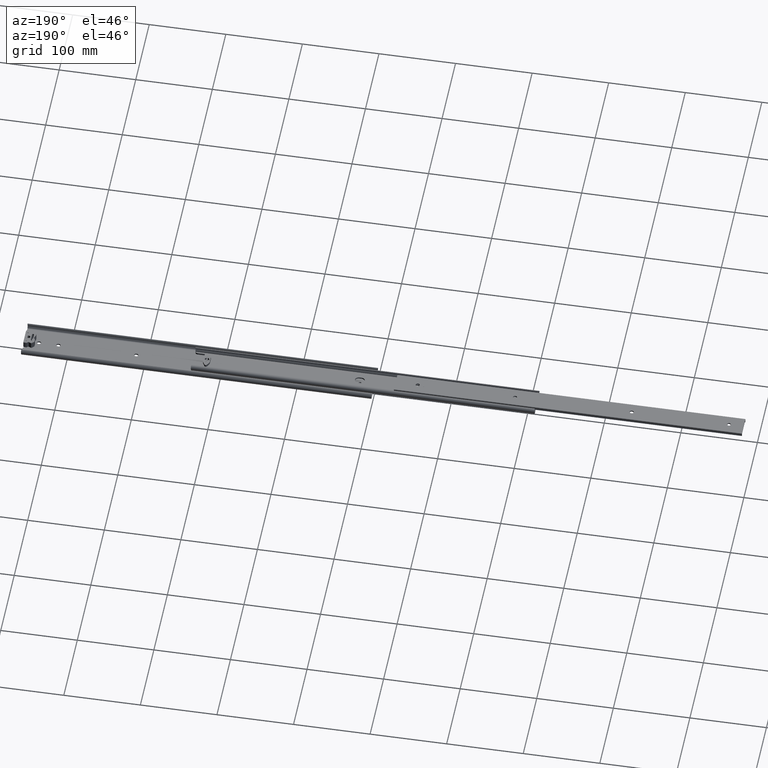
[diagram: clean part render]
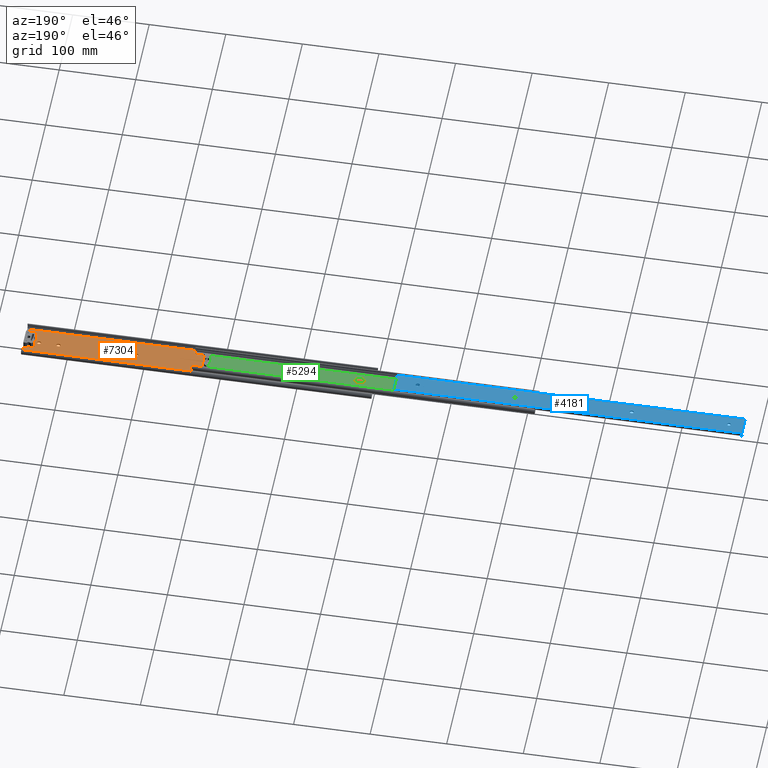
[diagram: same view with three faces highlighted in distinct colors, each labeled with its STEP entity id]
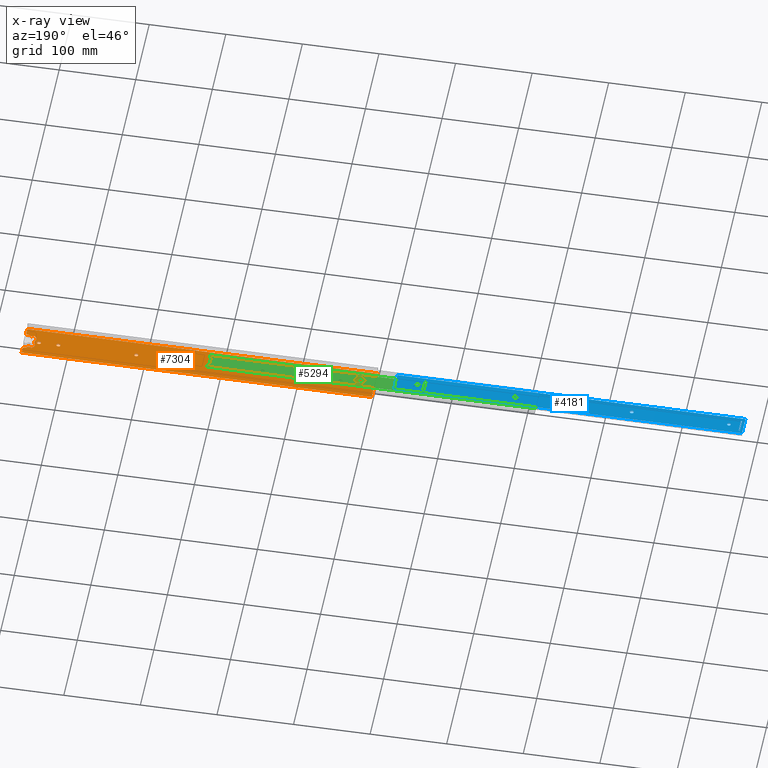
[diagram: x-ray of the same camera — body ghosted, the three highlighted faces saturated]
A machine part, auxiliary view with three faces highlighted in distinct colors.
The next image is the same camera in x-ray (body ghosted, the three faces saturated) — at least one of them is partly hidden behind the body in this view.
Their STEP definitions:

[orange] entity #7304 — the highlighted planar face has unit normal (0, 0, 1).
#33 = ORIENTED_EDGE ( 'NONE', *, *, #3793, .T. ) ;
#50 = DIRECTION ( 'NONE',  ( 1.000000000000000000, 2.457524924300520200E-014, 0.0000000000000000000 ) ) ;
#53 = CARTESIAN_POINT ( 'NONE',  ( 446.7999092650148900, -8.599909265014513700, 1.799999999999928300 ) ) ;
#104 = EDGE_CURVE ( 'NONE', #7780, #4413, #3165, .T. ) ;
#134 = CARTESIAN_POINT ( 'NONE',  ( 457.1999999999999900, -2.249999999999917000, 1.799999999999928300 ) ) ;
#138 = VERTEX_POINT ( 'NONE', #788 ) ;
#140 = ORIENTED_EDGE ( 'NONE', *, *, #4372, .T. ) ;
#155 = VECTOR ( 'NONE', #6981, 1000.000000000000000 ) ;
#158 = LINE ( 'NONE', #2384, #1753 ) ;
#189 = AXIS2_PLACEMENT_3D ( 'NONE', #6335, #2697, #6956 ) ;
#192 = ORIENTED_EDGE ( 'NONE', *, *, #7328, .T. ) ;
#234 = VERTEX_POINT ( 'NONE', #5058 ) ;
#240 = VECTOR ( 'NONE', #2477, 1000.000000000000000 ) ;
#251 = DIRECTION ( 'NONE',  ( -1.000000000000000000, 0.0000000000000000000, 0.0000000000000000000 ) ) ;
#264 = DIRECTION ( 'NONE',  ( 1.000000000000000000, -1.020425574103983300E-015, 0.0000000000000000000 ) ) ;
#278 = LINE ( 'NONE', #4540, #1892 ) ;
#290 = CARTESIAN_POINT ( 'NONE',  ( 442.7999999999996100, 7.179898987321523800, 1.799999999999928300 ) ) ;
#317 = AXIS2_PLACEMENT_3D ( 'NONE', #3310, #5115, #6101 ) ;
#329 = CIRCLE ( 'NONE', #6849, 2.249999999999974200 ) ;
#334 = DIRECTION ( 'NONE',  ( 1.000000000000000000, 0.0000000000000000000, 0.0000000000000000000 ) ) ;
#362 = AXIS2_PLACEMENT_3D ( 'NONE', #6943, #486, #4414 ) ;
#399 = ORIENTED_EDGE ( 'NONE', *, *, #2785, .T. ) ;
#406 = DIRECTION ( 'NONE',  ( 0.0000000000000000000, 1.000000000000000000, 0.0000000000000000000 ) ) ;
#417 = CIRCLE ( 'NONE', #4803, 2.399999999999957700 ) ;
#420 = CARTESIAN_POINT ( 'NONE',  ( 412.3999999999999200, 2.250000000000048400, 1.799999999999928300 ) ) ;
#445 = DIRECTION ( 'NONE',  ( 1.000000000000000000, 0.0000000000000000000, -0.0000000000000000000 ) ) ;
#456 = DIRECTION ( 'NONE',  ( 1.000000000000000000, 0.0000000000000000000, 0.0000000000000000000 ) ) ;
#458 = VECTOR ( 'NONE', #251, 1000.000000000000000 ) ;
#486 = DIRECTION ( 'NONE',  ( -0.0000000000000000000, -0.0000000000000000000, -1.000000000000000000 ) ) ;
#489 = CARTESIAN_POINT ( 'NONE',  ( 443.3999999999996400, 7.179898987321532600, 1.799999999999928300 ) ) ;
#493 = EDGE_CURVE ( 'NONE', #7094, #4788, #3996, .T. ) ;
#506 = CARTESIAN_POINT ( 'NONE',  ( 452.8317541634481200, 11.09999999999999800, 1.799999999999912800 ) ) ;
#511 = DIRECTION ( 'NONE',  ( 1.000000000000000000, 0.0000000000000000000, 0.0000000000000000000 ) ) ;
#517 = DIRECTION ( 'NONE',  ( 0.0000000000000000000, 0.0000000000000000000, 1.000000000000000000 ) ) ;
#519 = VECTOR ( 'NONE', #5054, 1000.000000000000000 ) ;
#522 = CARTESIAN_POINT ( 'NONE',  ( 311.6000000000000800, -2.249999999999886300, 1.799999999999928300 ) ) ;
#551 = EDGE_CURVE ( 'NONE', #1348, #4356, #5052, .T. ) ;
#564 = ORIENTED_EDGE ( 'NONE', *, *, #7535, .T. ) ;
#597 = ORIENTED_EDGE ( 'NONE', *, *, #1608, .F. ) ;
#598 = ORIENTED_EDGE ( 'NONE', *, *, #4098, .T. ) ;
#644 = VECTOR ( 'NONE', #3676, 1000.000000000000000 ) ;
#648 = CARTESIAN_POINT ( 'NONE',  ( 44.90000000000004800, 2.250000000000000000, 1.799999999999928300 ) ) ;
#660 = EDGE_CURVE ( 'NONE', #4357, #6418, #5897, .T. ) ;
#682 = ORIENTED_EDGE ( 'NONE', *, *, #6663, .T. ) ;
#684 = ORIENTED_EDGE ( 'NONE', *, *, #4446, .T. ) ;
#693 = AXIS2_PLACEMENT_3D ( 'NONE', #5706, #2129, #6334 ) ;
#697 = VERTEX_POINT ( 'NONE', #648 ) ;
#706 = CARTESIAN_POINT ( 'NONE',  ( 437.7999999999999500, -2.250000000000000000, 1.799999999999928300 ) ) ;
#711 = VERTEX_POINT ( 'NONE', #2905 ) ;
#717 = EDGE_CURVE ( 'NONE', #1895, #1047, #4291, .T. ) ;
#765 = VERTEX_POINT ( 'NONE', #3961 ) ;
#783 = CARTESIAN_POINT ( 'NONE',  ( 452.0536096776143000, 10.75000005778177000, 1.799999999999928300 ) ) ;
#788 = CARTESIAN_POINT ( 'NONE',  ( 457.1999999999999900, -13.35000000000000100, 1.799999999999928300 ) ) ;
#852 = DIRECTION ( 'NONE',  ( -0.7071067811865439100, -0.7071067811865512400, 0.0000000000000000000 ) ) ;
#857 = CARTESIAN_POINT ( 'NONE',  ( 457.1999999999999900, -2.250000000000000000, 1.799999999999928300 ) ) ;
#866 = CARTESIAN_POINT ( 'NONE',  ( 413.1999999999999900, 9.197372035146854300E-014, 1.799999999999928300 ) ) ;
#914 = CARTESIAN_POINT ( 'NONE',  ( 442.7999999999996700, -3.442382895611641600, 1.799999999999928300 ) ) ;
#926 = ORIENTED_EDGE ( 'NONE', *, *, #2837, .T. ) ;
#947 = EDGE_CURVE ( 'NONE', #3787, #7094, #2412, .T. ) ;
#967 = DIRECTION ( 'NONE',  ( -0.0000000000000000000, -0.0000000000000000000, -1.000000000000000000 ) ) ;
#1000 = EDGE_CURVE ( 'NONE', #138, #2480, #2045, .T. ) ;
#1033 = EDGE_CURVE ( 'NONE', #4101, #2532, #4858, .T. ) ;
#1047 = VERTEX_POINT ( 'NONE', #1358 ) ;
#1051 = AXIS2_PLACEMENT_3D ( 'NONE', #3561, #7825, #4170 ) ;
#1052 = DIRECTION ( 'NONE',  ( -0.7071067811865536800, 0.7071067811865412400, 0.0000000000000000000 ) ) ;
#1076 = VERTEX_POINT ( 'NONE', #4487 ) ;
#1081 = LINE ( 'NONE', #6195, #5496 ) ;
#1083 = EDGE_CURVE ( 'NONE', #4895, #7511, #1479, .T. ) ;
#1097 = ORIENTED_EDGE ( 'NONE', *, *, #7798, .T. ) ;
#1099 = DIRECTION ( 'NONE',  ( 1.000000000000000000, -5.782411586589459000E-015, 0.0000000000000000000 ) ) ;
#1120 = DIRECTION ( 'NONE',  ( -0.0000000000000000000, -0.0000000000000000000, -1.000000000000000000 ) ) ;
#1145 = CARTESIAN_POINT ( 'NONE',  ( 453.7999999999999500, 9.350000000000001400, 1.799999999999912800 ) ) ;
#1153 = EDGE_CURVE ( 'NONE', #3748, #765, #5689, .T. ) ;
#1158 = VERTEX_POINT ( 'NONE', #5028 ) ;
#1172 = CARTESIAN_POINT ( 'NONE',  ( 435.5500000000000100, 4.660209697135381600E-014, 1.799999999999928300 ) ) ;
#1202 = LINE ( 'NONE', #3177, #5800 ) ;
#1206 = LINE ( 'NONE', #5857, #7250 ) ;
#1213 = FACE_BOUND ( 'NONE', #5116, .T. ) ;
#1219 = CARTESIAN_POINT ( 'NONE',  ( 448.1962538539281700, -10.03176882133011300, 1.799999999999928300 ) ) ;
#1348 = VERTEX_POINT ( 'NONE', #5593 ) ;
#1358 = CARTESIAN_POINT ( 'NONE',  ( 457.1999999999999900, 21.29985872422196300, 1.799999999999928300 ) ) ;
#1373 = VECTOR ( 'NONE', #3331, 1000.000000000000000 ) ;
#1380 = DIRECTION ( 'NONE',  ( 0.0000000000000000000, 0.0000000000000000000, 1.000000000000000000 ) ) ;
#1388 = CIRCLE ( 'NONE', #6381, 2.249999999999998700 ) ;
#1396 = CARTESIAN_POINT ( 'NONE',  ( 438.6000000000000800, 2.250000000000000000, 1.799999999999928300 ) ) ;
#1426 = ORIENTED_EDGE ( 'NONE', *, *, #3934, .T. ) ;
#1431 = EDGE_LOOP ( 'NONE', ( #5403, #4511, #3273, #5257, #682, #2799, #597, #564, #2125, #1699, #5248, #6269, #3002, #4068, #3649, #7488, #7760, #1426, #4535, #3761, #6122, #3550, #598, #5834, #6725, #6072 ) ) ;
#1443 = DIRECTION ( 'NONE',  ( 1.000000000000000000, 0.0000000000000000000, -0.0000000000000000000 ) ) ;
#1465 = AXIS2_PLACEMENT_3D ( 'NONE', #5335, #7186, #3531 ) ;
#1470 = DIRECTION ( 'NONE',  ( -0.0000000000000000000, -0.0000000000000000000, -1.000000000000000000 ) ) ;
#1473 = DIRECTION ( 'NONE',  ( 1.000000000000000000, 0.0000000000000000000, 0.0000000000000000000 ) ) ;
#1479 = CIRCLE ( 'NONE', #5852, 0.5999999999999894300 ) ;
#1498 = EDGE_CURVE ( 'NONE', #234, #5711, #3526, .T. ) ;
#1501 = CARTESIAN_POINT ( 'NONE',  ( 448.1962538539281700, 10.03176882133013400, 1.799999999999928300 ) ) ;
#1537 = ORIENTED_EDGE ( 'NONE', *, *, #5970, .T. ) ;
#1542 = CARTESIAN_POINT ( 'NONE',  ( 146.5000000000000900, 2.250000000000041700, 1.799999999999928300 ) ) ;
#1551 = EDGE_CURVE ( 'NONE', #7383, #2560, #7820, .T. ) ;
#1589 = DIRECTION ( 'NONE',  ( -0.0000000000000000000, -0.0000000000000000000, -1.000000000000000000 ) ) ;
#1608 = EDGE_CURVE ( 'NONE', #4455, #1894, #1202, .T. ) ;
#1640 = CARTESIAN_POINT ( 'NONE',  ( 437.7999999999999500, 4.660209697135381600E-014, 1.799999999999928300 ) ) ;
#1680 = AXIS2_PLACEMENT_3D ( 'NONE', #4550, #5125, #6361 ) ;
#1699 = ORIENTED_EDGE ( 'NONE', *, *, #4057, .T. ) ;
#1745 = EDGE_LOOP ( 'NONE', ( #6067, #399, #7492, #6087, #140 ) ) ;
#1753 = VECTOR ( 'NONE', #6600, 1000.000000000000000 ) ;
#1758 = DIRECTION ( 'NONE',  ( 1.000000000000000000, 0.0000000000000000000, 0.0000000000000000000 ) ) ;
#1814 = EDGE_CURVE ( 'NONE', #711, #4423, #2862, .T. ) ;
#1830 = VERTEX_POINT ( 'NONE', #7270 ) ;
#1835 = CARTESIAN_POINT ( 'NONE',  ( 445.3856957026417800, 10.01412282738758800, 1.799999999999928300 ) ) ;
#1840 = AXIS2_PLACEMENT_3D ( 'NONE', #5171, #517, #456 ) ;
#1841 = DIRECTION ( 'NONE',  ( -1.000000000000000000, -0.0000000000000000000, 0.0000000000000000000 ) ) ;
#1844 = DIRECTION ( 'NONE',  ( -1.000000000000000000, -0.0000000000000000000, 0.0000000000000000000 ) ) ;
#1845 = CIRCLE ( 'NONE', #6021, 2.000000000000001800 ) ;
#1877 = DIRECTION ( 'NONE',  ( -1.000000000000000000, 0.0000000000000000000, 0.0000000000000000000 ) ) ;
#1892 = VECTOR ( 'NONE', #2706, 1000.000000000000000 ) ;
#1893 = CARTESIAN_POINT ( 'NONE',  ( 442.7999999999996700, 3.442382895611641600, 1.799999999999928300 ) ) ;
#1894 = VERTEX_POINT ( 'NONE', #4578 ) ;
#1895 = VERTEX_POINT ( 'NONE', #5260 ) ;
#1908 = AXIS2_PLACEMENT_3D ( 'NONE', #7564, #3905, #334 ) ;
#1937 = CARTESIAN_POINT ( 'NONE',  ( 452.5990452568618700, 11.09999999999999800, 1.799999999999928300 ) ) ;
#2000 = CARTESIAN_POINT ( 'NONE',  ( 0.0000000000000000000, 21.29985872422196300, 1.799999999999928300 ) ) ;
#2037 = CIRCLE ( 'NONE', #7721, 2.249999999999974200 ) ;
#2045 = CIRCLE ( 'NONE', #1840, 2.000000000000001800 ) ;
#2097 = CARTESIAN_POINT ( 'NONE',  ( 453.7999999999999500, -11.35000000000000300, 1.799999999999912800 ) ) ;
#2125 = ORIENTED_EDGE ( 'NONE', *, *, #4777, .T. ) ;
#2129 = DIRECTION ( 'NONE',  ( -0.0000000000000000000, -0.0000000000000000000, -1.000000000000000000 ) ) ;
#2146 = CARTESIAN_POINT ( 'NONE',  ( 457.1999999999999900, 21.29985872422196300, 1.799999999999928300 ) ) ;
#2169 = EDGE_CURVE ( 'NONE', #6219, #4560, #3609, .T. ) ;
#2194 = DIRECTION ( 'NONE',  ( 1.000000000000000000, 0.0000000000000000000, -0.0000000000000000000 ) ) ;
#2206 = VERTEX_POINT ( 'NONE', #7008 ) ;
#2208 = EDGE_CURVE ( 'NONE', #2532, #7021, #3419, .T. ) ;
#2238 = DIRECTION ( 'NONE',  ( 1.000000000000000000, 0.0000000000000000000, 0.0000000000000000000 ) ) ;
#2282 = VERTEX_POINT ( 'NONE', #4661 ) ;
#2291 = CARTESIAN_POINT ( 'NONE',  ( 412.3999999999999200, 9.192473447950264600E-014, 1.799999999999928300 ) ) ;
#2315 = LINE ( 'NONE', #7785, #7333 ) ;
#2384 = CARTESIAN_POINT ( 'NONE',  ( 456.8000000000000100, -11.09999999999999800, 1.799999999999928300 ) ) ;
#2412 = CIRCLE ( 'NONE', #7244, 2.249999999999974200 ) ;
#2462 = ORIENTED_EDGE ( 'NONE', *, *, #660, .T. ) ;
#2471 = CARTESIAN_POINT ( 'NONE',  ( 442.7999999999996700, 3.442382895611641600, 1.799999999999928300 ) ) ;
#2476 = CARTESIAN_POINT ( 'NONE',  ( 44.09999999999999400, -2.250000000000000000, 1.799999999999928300 ) ) ;
#2477 = DIRECTION ( 'NONE',  ( -1.392637613640366200E-014, 1.000000000000000000, 0.0000000000000000000 ) ) ;
#2480 = VERTEX_POINT ( 'NONE', #3040 ) ;
#2526 = VERTEX_POINT ( 'NONE', #2476 ) ;
#2532 = VERTEX_POINT ( 'NONE', #5505 ) ;
#2534 = EDGE_CURVE ( 'NONE', #4612, #4101, #4171, .T. ) ;
#2560 = VERTEX_POINT ( 'NONE', #4956 ) ;
#2577 = LINE ( 'NONE', #6035, #3970 ) ;
#2578 = CARTESIAN_POINT ( 'NONE',  ( 446.7999092650148900, 8.599909265014513700, 1.799999999999928300 ) ) ;
#2602 = DIRECTION ( 'NONE',  ( 1.000000000000000000, 1.020425574103983300E-015, -0.0000000000000000000 ) ) ;
#2606 = CIRCLE ( 'NONE', #1051, 2.249999999999998700 ) ;
#2612 = CARTESIAN_POINT ( 'NONE',  ( 19.10000000000000100, 0.0000000000000000000, 1.799999999999928300 ) ) ;
#2621 = ORIENTED_EDGE ( 'NONE', *, *, #2208, .T. ) ;
#2647 = EDGE_CURVE ( 'NONE', #2526, #234, #3221, .T. ) ;
#2697 = DIRECTION ( 'NONE',  ( 0.0000000000000000000, 0.0000000000000000000, 1.000000000000000000 ) ) ;
#2702 = AXIS2_PLACEMENT_3D ( 'NONE', #53, #967, #1877 ) ;
#2706 = DIRECTION ( 'NONE',  ( 1.000000000000000000, 0.0000000000000000000, -0.0000000000000000000 ) ) ;
#2735 = VECTOR ( 'NONE', #264, 1000.000000000000000 ) ;
#2784 = FACE_OUTER_BOUND ( 'NONE', #1431, .T. ) ;
#2785 = EDGE_CURVE ( 'NONE', #5844, #3373, #6556, .T. ) ;
#2792 = EDGE_CURVE ( 'NONE', #6162, #6201, #329, .T. ) ;
#2799 = ORIENTED_EDGE ( 'NONE', *, *, #4722, .T. ) ;
#2815 = CARTESIAN_POINT ( 'NONE',  ( 445.3856957026418400, -10.01412282738757000, 1.799999999999928300 ) ) ;
#2820 = VERTEX_POINT ( 'NONE', #1542 ) ;
#2831 = EDGE_CURVE ( 'NONE', #1047, #4356, #2941, .T. ) ;
#2837 = EDGE_CURVE ( 'NONE', #6201, #3787, #7600, .T. ) ;
#2862 = CIRCLE ( 'NONE', #5401, 2.000000000000001800 ) ;
#2871 = DIRECTION ( 'NONE',  ( 1.000000000000000000, 0.0000000000000000000, 0.0000000000000000000 ) ) ;
#2878 = CARTESIAN_POINT ( 'NONE',  ( 449.8718673606241500, 11.75000028890882400, 1.799999999999928300 ) ) ;
#2905 = CARTESIAN_POINT ( 'NONE',  ( 452.8317541634481200, -11.09999999999999800, 1.799999999999912800 ) ) ;
#2910 = CARTESIAN_POINT ( 'NONE',  ( 310.7999999999999500, -2.249999999999917000, 1.799999999999928300 ) ) ;
#2929 = PLANE ( 'NONE',  #1465 ) ;
#2941 = LINE ( 'NONE', #2146, #155 ) ;
#2967 = EDGE_CURVE ( 'NONE', #7678, #4895, #417, .T. ) ;
#2991 = ORIENTED_EDGE ( 'NONE', *, *, #5838, .T. ) ;
#2996 = EDGE_CURVE ( 'NONE', #6728, #7685, #1845, .T. ) ;
#3002 = ORIENTED_EDGE ( 'NONE', *, *, #2967, .T. ) ;
#3034 = CARTESIAN_POINT ( 'NONE',  ( 311.6000000000000200, 1.136534830734784300E-013, 1.799999999999928300 ) ) ;
#3040 = CARTESIAN_POINT ( 'NONE',  ( 455.1999999999999900, -11.35000000000000100, 1.799999999999928300 ) ) ;
#3063 = AXIS2_PLACEMENT_3D ( 'NONE', #5187, #1589, #5795 ) ;
#3157 = ORIENTED_EDGE ( 'NONE', *, *, #6234, .T. ) ;
#3161 = DIRECTION ( 'NONE',  ( 1.000000000000000000, 0.0000000000000000000, 0.0000000000000000000 ) ) ;
#3165 = LINE ( 'NONE', #3197, #7460 ) ;
#3177 = CARTESIAN_POINT ( 'NONE',  ( 442.7999999999996700, -3.442382895611641600, 1.799999999999928300 ) ) ;
#3187 = CARTESIAN_POINT ( 'NONE',  ( 145.6999999999999900, 2.250000000000041700, 1.799999999999928300 ) ) ;
#3188 = DIRECTION ( 'NONE',  ( 1.000000000000000000, -1.185394375250839000E-013, 0.0000000000000000000 ) ) ;
#3197 = CARTESIAN_POINT ( 'NONE',  ( 457.1999999999999900, 2.250000000000048400, 1.799999999999928300 ) ) ;
#3203 = DIRECTION ( 'NONE',  ( 1.000000000000000000, 0.0000000000000000000, 0.0000000000000000000 ) ) ;
#3219 = CARTESIAN_POINT ( 'NONE',  ( 44.09999999999999400, 5.325188282918731300E-015, 1.799999999999928300 ) ) ;
#3221 = CIRCLE ( 'NONE', #7816, 2.250000000000001800 ) ;
#3224 = CARTESIAN_POINT ( 'NONE',  ( 449.8718673606241500, -11.75000028890882400, 1.799999999999928300 ) ) ;
#3236 = CARTESIAN_POINT ( 'NONE',  ( 457.1999999999999900, 11.35000000000000000, 1.799999999999928300 ) ) ;
#3273 = ORIENTED_EDGE ( 'NONE', *, *, #5831, .F. ) ;
#3310 = CARTESIAN_POINT ( 'NONE',  ( 44.09999999999999400, 5.325188282918731300E-015, 1.799999999999928300 ) ) ;
#3331 = DIRECTION ( 'NONE',  ( 1.000000000000000000, 0.0000000000000000000, -0.0000000000000000000 ) ) ;
#3373 = VERTEX_POINT ( 'NONE', #4466 ) ;
#3409 = ORIENTED_EDGE ( 'NONE', *, *, #2534, .T. ) ;
#3419 = CIRCLE ( 'NONE', #3063, 2.249999999999974200 ) ;
#3473 = ORIENTED_EDGE ( 'NONE', *, *, #947, .T. ) ;
#3480 = CARTESIAN_POINT ( 'NONE',  ( 457.1999999999999900, -21.29985872422196300, 1.799999999999928300 ) ) ;
#3489 = DIRECTION ( 'NONE',  ( 1.000000000000000000, 0.0000000000000000000, 0.0000000000000000000 ) ) ;
#3526 = CIRCLE ( 'NONE', #317, 2.250000000000001800 ) ;
#3531 = DIRECTION ( 'NONE',  ( 1.000000000000000000, 0.0000000000000000000, -0.0000000000000000000 ) ) ;
#3550 = ORIENTED_EDGE ( 'NONE', *, *, #7275, .F. ) ;
#3561 = CARTESIAN_POINT ( 'NONE',  ( 19.10000000000000100, 0.0000000000000000000, 1.799999999999928300 ) ) ;
#3609 = LINE ( 'NONE', #5630, #5223 ) ;
#3621 = DIRECTION ( 'NONE',  ( -0.0000000000000000000, -0.0000000000000000000, -1.000000000000000000 ) ) ;
#3642 = DIRECTION ( 'NONE',  ( 1.000000000000000000, 0.0000000000000000000, 0.0000000000000000000 ) ) ;
#3649 = ORIENTED_EDGE ( 'NONE', *, *, #7003, .F. ) ;
#3676 = DIRECTION ( 'NONE',  ( 0.0000000000000000000, 1.000000000000000000, 0.0000000000000000000 ) ) ;
#3748 = VERTEX_POINT ( 'NONE', #6802 ) ;
#3761 = ORIENTED_EDGE ( 'NONE', *, *, #2831, .T. ) ;
#3787 = VERTEX_POINT ( 'NONE', #1396 ) ;
#3793 = EDGE_CURVE ( 'NONE', #7394, #6706, #1388, .T. ) ;
#3820 = AXIS2_PLACEMENT_3D ( 'NONE', #4542, #4632, #7007 ) ;
#3826 = DIRECTION ( 'NONE',  ( 1.000000000000000000, 0.0000000000000000000, 0.0000000000000000000 ) ) ;
#3831 = CARTESIAN_POINT ( 'NONE',  ( 456.8000000000000100, 11.09999999999999800, 1.799999999999928300 ) ) ;
#3835 = DIRECTION ( 'NONE',  ( -1.000000000000000000, 0.0000000000000000000, 0.0000000000000000000 ) ) ;
#3840 = ORIENTED_EDGE ( 'NONE', *, *, #2647, .T. ) ;
#3844 = VERTEX_POINT ( 'NONE', #7468 ) ;
#3863 = DIRECTION ( 'NONE',  ( -1.000000000000000000, -0.0000000000000000000, 0.0000000000000000000 ) ) ;
#3865 = CIRCLE ( 'NONE', #7223, 2.399999999999957700 ) ;
#3885 = EDGE_CURVE ( 'NONE', #1076, #5844, #3985, .T. ) ;
#3891 = DIRECTION ( 'NONE',  ( -0.0000000000000000000, -0.0000000000000000000, -1.000000000000000000 ) ) ;
#3905 = DIRECTION ( 'NONE',  ( -0.0000000000000000000, -0.0000000000000000000, -1.000000000000000000 ) ) ;
#3934 = EDGE_CURVE ( 'NONE', #3844, #1895, #5225, .T. ) ;
#3961 = CARTESIAN_POINT ( 'NONE',  ( 452.0536096776143000, -10.75000005778177000, 1.799999999999928300 ) ) ;
#3970 = VECTOR ( 'NONE', #1844, 1000.000000000000000 ) ;
#3982 = CARTESIAN_POINT ( 'NONE',  ( 457.1999999999999900, 0.0000000000000000000, 1.799999999999928300 ) ) ;
#3985 = LINE ( 'NONE', #5063, #7046 ) ;
#3996 = LINE ( 'NONE', #6034, #7056 ) ;
#4046 = AXIS2_PLACEMENT_3D ( 'NONE', #3034, #7294, #3642 ) ;
#4057 = EDGE_CURVE ( 'NONE', #5503, #4560, #5687, .T. ) ;
#4068 = ORIENTED_EDGE ( 'NONE', *, *, #1083, .T. ) ;
#4081 = DIRECTION ( 'NONE',  ( -0.0000000000000000000, -0.0000000000000000000, -1.000000000000000000 ) ) ;
#4084 = EDGE_CURVE ( 'NONE', #3373, #7780, #5510, .T. ) ;
#4098 = EDGE_CURVE ( 'NONE', #2282, #138, #2315, .T. ) ;
#4101 = VERTEX_POINT ( 'NONE', #2910 ) ;
#4119 = DIRECTION ( 'NONE',  ( 0.0000000000000000000, 1.000000000000000000, 0.0000000000000000000 ) ) ;
#4131 = EDGE_LOOP ( 'NONE', ( #5179, #4904, #2462, #1537, #684 ) ) ;
#4170 = DIRECTION ( 'NONE',  ( 1.000000000000000000, 0.0000000000000000000, 0.0000000000000000000 ) ) ;
#4171 = LINE ( 'NONE', #134, #7037 ) ;
#4291 = LINE ( 'NONE', #3982, #5519 ) ;
#4308 = CARTESIAN_POINT ( 'NONE',  ( 452.5990452568618700, 10.49999999999999800, 1.799999999999928300 ) ) ;
#4356 = VERTEX_POINT ( 'NONE', #2000 ) ;
#4357 = VERTEX_POINT ( 'NONE', #7467 ) ;
#4372 = EDGE_CURVE ( 'NONE', #4413, #1076, #2037, .T. ) ;
#4399 = ORIENTED_EDGE ( 'NONE', *, *, #4980, .T. ) ;
#4413 = VERTEX_POINT ( 'NONE', #6933 ) ;
#4414 = DIRECTION ( 'NONE',  ( 1.000000000000000000, 0.0000000000000000000, 0.0000000000000000000 ) ) ;
#4423 = VERTEX_POINT ( 'NONE', #2097 ) ;
#4432 = EDGE_CURVE ( 'NONE', #2206, #4357, #6270, .T. ) ;
#4446 = EDGE_CURVE ( 'NONE', #2820, #1830, #5037, .T. ) ;
#4455 = VERTEX_POINT ( 'NONE', #914 ) ;
#4466 = CARTESIAN_POINT ( 'NONE',  ( 410.1499999999999800, 9.192473447950264600E-014, 1.799999999999928300 ) ) ;
#4487 = CARTESIAN_POINT ( 'NONE',  ( 413.2000000000000500, -2.249999999999908100, 1.799999999999928300 ) ) ;
#4498 = LINE ( 'NONE', #2815, #5717 ) ;
#4511 = ORIENTED_EDGE ( 'NONE', *, *, #1153, .T. ) ;
#4535 = ORIENTED_EDGE ( 'NONE', *, *, #717, .T. ) ;
#4540 = CARTESIAN_POINT ( 'NONE',  ( 457.1999999999999900, 2.250000000000082600, 1.799999999999928300 ) ) ;
#4542 = CARTESIAN_POINT ( 'NONE',  ( 310.7999999999999500, 1.136044972015125300E-013, 1.799999999999928300 ) ) ;
#4550 = CARTESIAN_POINT ( 'NONE',  ( 452.5990452568618700, -10.49999999999999800, 1.799999999999928300 ) ) ;
#4553 = CARTESIAN_POINT ( 'NONE',  ( 457.1999999999999900, 2.250000000000000000, 1.799999999999928300 ) ) ;
#4560 = VERTEX_POINT ( 'NONE', #7059 ) ;
#4576 = CARTESIAN_POINT ( 'NONE',  ( 457.1999999999999900, 2.250000000000041700, 1.799999999999928300 ) ) ;
#4578 = CARTESIAN_POINT ( 'NONE',  ( 442.7999999999996100, -7.179898987321511300, 1.799999999999928300 ) ) ;
#4584 = VECTOR ( 'NONE', #7771, 1000.000000000000000 ) ;
#4612 = VERTEX_POINT ( 'NONE', #522 ) ;
#4624 = EDGE_LOOP ( 'NONE', ( #192, #33 ) ) ;
#4632 = DIRECTION ( 'NONE',  ( -0.0000000000000000000, -0.0000000000000000000, -1.000000000000000000 ) ) ;
#4661 = CARTESIAN_POINT ( 'NONE',  ( 457.1999999999999900, -21.29985872422196300, 1.799999999999928300 ) ) ;
#4667 = EDGE_CURVE ( 'NONE', #711, #3748, #158, .T. ) ;
#4678 = DIRECTION ( 'NONE',  ( 1.000000000000000000, 0.0000000000000000000, 0.0000000000000000000 ) ) ;
#4685 = DIRECTION ( 'NONE',  ( -0.0000000000000000000, -0.0000000000000000000, -1.000000000000000000 ) ) ;
#4712 = CARTESIAN_POINT ( 'NONE',  ( 412.3999999999999200, 9.192473447950264600E-014, 1.799999999999928300 ) ) ;
#4722 = EDGE_CURVE ( 'NONE', #1158, #1894, #7229, .T. ) ;
#4730 = ORIENTED_EDGE ( 'NONE', *, *, #2792, .T. ) ;
#4734 = EDGE_CURVE ( 'NONE', #1830, #2206, #2577, .T. ) ;
#4775 = FACE_BOUND ( 'NONE', #6491, .T. ) ;
#4777 = EDGE_CURVE ( 'NONE', #6316, #5503, #5031, .T. ) ;
#4787 = CARTESIAN_POINT ( 'NONE',  ( 437.7999999999999500, 2.250000000000000000, 1.799999999999928300 ) ) ;
#4788 = VERTEX_POINT ( 'NONE', #706 ) ;
#4803 = AXIS2_PLACEMENT_3D ( 'NONE', #2878, #7139, #3489 ) ;
#4858 = CIRCLE ( 'NONE', #3820, 2.249999999999974200 ) ;
#4883 = CARTESIAN_POINT ( 'NONE',  ( 44.09999999999999400, 2.250000000000000000, 1.799999999999928300 ) ) ;
#4895 = VERTEX_POINT ( 'NONE', #783 ) ;
#4904 = ORIENTED_EDGE ( 'NONE', *, *, #4432, .T. ) ;
#4906 = EDGE_CURVE ( 'NONE', #7678, #6219, #5874, .T. ) ;
#4922 = ORIENTED_EDGE ( 'NONE', *, *, #493, .T. ) ;
#4927 = EDGE_CURVE ( 'NONE', #4423, #2480, #1081, .T. ) ;
#4956 = CARTESIAN_POINT ( 'NONE',  ( 445.3856957026418400, -10.01412282738757600, 1.799999999999928300 ) ) ;
#4969 = AXIS2_PLACEMENT_3D ( 'NONE', #7274, #3621, #50 ) ;
#4971 = CARTESIAN_POINT ( 'NONE',  ( 439.5999999999996800, 0.0000000000000000000, 1.799999999999928300 ) ) ;
#4980 = EDGE_CURVE ( 'NONE', #5640, #2526, #6936, .T. ) ;
#4995 = VERTEX_POINT ( 'NONE', #5079 ) ;
#5015 = ORIENTED_EDGE ( 'NONE', *, *, #1498, .T. ) ;
#5028 = CARTESIAN_POINT ( 'NONE',  ( 442.9757359312877200, -7.604163056033451400, 1.799999999999928300 ) ) ;
#5031 = LINE ( 'NONE', #1893, #240 ) ;
#5037 = CIRCLE ( 'NONE', #1908, 2.250000000000001800 ) ;
#5052 = LINE ( 'NONE', #7322, #644 ) ;
#5054 = DIRECTION ( 'NONE',  ( -1.000000000000000000, -0.0000000000000000000, 0.0000000000000000000 ) ) ;
#5058 = CARTESIAN_POINT ( 'NONE',  ( 41.84999999999999400, 5.325188282918731300E-015, 1.799999999999928300 ) ) ;
#5060 = CARTESIAN_POINT ( 'NONE',  ( 44.90000000000000600, 5.374174154884625500E-015, 1.799999999999928300 ) ) ;
#5062 = DIRECTION ( 'NONE',  ( -0.0000000000000000000, -0.0000000000000000000, -1.000000000000000000 ) ) ;
#5063 = CARTESIAN_POINT ( 'NONE',  ( 457.1999999999999900, -2.249999999999951200, 1.799999999999928300 ) ) ;
#5079 = CARTESIAN_POINT ( 'NONE',  ( 311.6000000000000800, 2.250000000000082600, 1.799999999999928300 ) ) ;
#5115 = DIRECTION ( 'NONE',  ( -0.0000000000000000000, -0.0000000000000000000, -1.000000000000000000 ) ) ;
#5116 = EDGE_LOOP ( 'NONE', ( #3409, #7018, #2621, #5561, #3157 ) ) ;
#5125 = DIRECTION ( 'NONE',  ( -0.0000000000000000000, -0.0000000000000000000, -1.000000000000000000 ) ) ;
#5150 = CARTESIAN_POINT ( 'NONE',  ( 438.6000000000000800, -2.249999999999952900, 1.799999999999928300 ) ) ;
#5154 = CARTESIAN_POINT ( 'NONE',  ( 438.6000000000000200, 4.665108284331971200E-014, 1.799999999999928300 ) ) ;
#5166 = EDGE_CURVE ( 'NONE', #4788, #6162, #5770, .T. ) ;
#5167 = ORIENTED_EDGE ( 'NONE', *, *, #5166, .T. ) ;
#5171 = CARTESIAN_POINT ( 'NONE',  ( 455.1999999999999900, -13.35000000000000100, 1.799999999999912800 ) ) ;
#5179 = ORIENTED_EDGE ( 'NONE', *, *, #4734, .T. ) ;
#5187 = CARTESIAN_POINT ( 'NONE',  ( 310.7999999999999500, 1.136044972015125300E-013, 1.799999999999928300 ) ) ;
#5204 = AXIS2_PLACEMENT_3D ( 'NONE', #2291, #6516, #2871 ) ;
#5223 = VECTOR ( 'NONE', #852, 1000.000000000000000 ) ;
#5225 = CIRCLE ( 'NONE', #189, 2.000000000000001800 ) ;
#5248 = ORIENTED_EDGE ( 'NONE', *, *, #2169, .F. ) ;
#5257 = ORIENTED_EDGE ( 'NONE', *, *, #1551, .T. ) ;
#5260 = CARTESIAN_POINT ( 'NONE',  ( 457.1999999999999900, 13.35000000000000100, 1.799999999999928300 ) ) ;
#5284 = CIRCLE ( 'NONE', #6390, 2.250000000000001800 ) ;
#5320 = DIRECTION ( 'NONE',  ( 1.000000000000000000, 0.0000000000000000000, 0.0000000000000000000 ) ) ;
#5335 = CARTESIAN_POINT ( 'NONE',  ( 457.1999999999999900, 0.0000000000000000000, 1.799999999999928300 ) ) ;
#5341 = DIRECTION ( 'NONE',  ( -0.0000000000000000000, -0.0000000000000000000, -1.000000000000000000 ) ) ;
#5401 = AXIS2_PLACEMENT_3D ( 'NONE', #7191, #7163, #7110 ) ;
#5403 = ORIENTED_EDGE ( 'NONE', *, *, #4667, .T. ) ;
#5429 = CARTESIAN_POINT ( 'NONE',  ( 44.90000000000000600, -2.249999999999994700, 1.799999999999928300 ) ) ;
#5467 = EDGE_CURVE ( 'NONE', #7685, #3844, #5965, .T. ) ;
#5496 = VECTOR ( 'NONE', #2602, 1000.000000000000000 ) ;
#5503 = VERTEX_POINT ( 'NONE', #290 ) ;
#5505 = CARTESIAN_POINT ( 'NONE',  ( 308.5500000000000100, 1.136044972015125300E-013, 1.799999999999928300 ) ) ;
#5510 = CIRCLE ( 'NONE', #7469, 2.249999999999974200 ) ;
#5519 = VECTOR ( 'NONE', #406, 1000.000000000000000 ) ;
#5561 = ORIENTED_EDGE ( 'NONE', *, *, #6548, .T. ) ;
#5576 = DIRECTION ( 'NONE',  ( 1.000000000000000000, 0.0000000000000000000, 0.0000000000000000000 ) ) ;
#5593 = CARTESIAN_POINT ( 'NONE',  ( 0.0000000000000000000, -21.29985872422196300, 1.799999999999928300 ) ) ;
#5630 = CARTESIAN_POINT ( 'NONE',  ( 445.3856957026417800, 10.01412282738758800, 1.799999999999928300 ) ) ;
#5640 = VERTEX_POINT ( 'NONE', #5429 ) ;
#5656 = DIRECTION ( 'NONE',  ( 1.000000000000000000, 0.0000000000000000000, 0.0000000000000000000 ) ) ;
#5687 = CIRCLE ( 'NONE', #6230, 0.5999999999999894300 ) ;
#5689 = CIRCLE ( 'NONE', #1680, 0.5999999999999894300 ) ;
#5706 = CARTESIAN_POINT ( 'NONE',  ( 145.6999999999999900, 5.324886414075671300E-014, 1.799999999999928300 ) ) ;
#5711 = VERTEX_POINT ( 'NONE', #4883 ) ;
#5716 = CARTESIAN_POINT ( 'NONE',  ( 453.7999999999999500, 11.35000000000000300, 1.799999999999912800 ) ) ;
#5717 = VECTOR ( 'NONE', #1052, 1000.000000000000100 ) ;
#5770 = CIRCLE ( 'NONE', #7673, 2.249999999999974200 ) ;
#5795 = DIRECTION ( 'NONE',  ( 1.000000000000000000, 0.0000000000000000000, 0.0000000000000000000 ) ) ;
#5800 = VECTOR ( 'NONE', #6368, 1000.000000000000000 ) ;
#5809 = FACE_BOUND ( 'NONE', #7364, .T. ) ;
#5831 = EDGE_CURVE ( 'NONE', #7383, #765, #3865, .T. ) ;
#5834 = ORIENTED_EDGE ( 'NONE', *, *, #1000, .T. ) ;
#5836 = DIRECTION ( 'NONE',  ( -0.0000000000000000000, -0.0000000000000000000, -1.000000000000000000 ) ) ;
#5838 = EDGE_CURVE ( 'NONE', #697, #5640, #5284, .T. ) ;
#5844 = VERTEX_POINT ( 'NONE', #6258 ) ;
#5852 = AXIS2_PLACEMENT_3D ( 'NONE', #4308, #3891, #3188 ) ;
#5857 = CARTESIAN_POINT ( 'NONE',  ( 457.1999999999999900, 2.250000000000000000, 1.799999999999928300 ) ) ;
#5874 = CIRCLE ( 'NONE', #7826, 1.999999999999946300 ) ;
#5897 = CIRCLE ( 'NONE', #362, 2.250000000000001800 ) ;
#5951 = VECTOR ( 'NONE', #2194, 1000.000000000000000 ) ;
#5965 = LINE ( 'NONE', #3236, #2735 ) ;
#5970 = EDGE_CURVE ( 'NONE', #6418, #2820, #7579, .T. ) ;
#6006 = FACE_BOUND ( 'NONE', #4624, .T. ) ;
#6021 = AXIS2_PLACEMENT_3D ( 'NONE', #1145, #5341, #1758 ) ;
#6034 = CARTESIAN_POINT ( 'NONE',  ( 457.1999999999999900, -2.250000000000000000, 1.799999999999928300 ) ) ;
#6035 = CARTESIAN_POINT ( 'NONE',  ( 457.1999999999999900, -2.249999999999957800, 1.799999999999928300 ) ) ;
#6059 = CARTESIAN_POINT ( 'NONE',  ( 21.35000000000000100, 2.755455298081543800E-016, 1.799999999999928300 ) ) ;
#6067 = ORIENTED_EDGE ( 'NONE', *, *, #3885, .T. ) ;
#6072 = ORIENTED_EDGE ( 'NONE', *, *, #1814, .F. ) ;
#6087 = ORIENTED_EDGE ( 'NONE', *, *, #104, .T. ) ;
#6101 = DIRECTION ( 'NONE',  ( 1.000000000000000000, 0.0000000000000000000, 0.0000000000000000000 ) ) ;
#6122 = ORIENTED_EDGE ( 'NONE', *, *, #551, .F. ) ;
#6162 = VERTEX_POINT ( 'NONE', #1172 ) ;
#6195 = CARTESIAN_POINT ( 'NONE',  ( 457.1999999999999900, -11.35000000000000000, 1.799999999999928300 ) ) ;
#6201 = VERTEX_POINT ( 'NONE', #4787 ) ;
#6219 = VERTEX_POINT ( 'NONE', #1835 ) ;
#6230 = AXIS2_PLACEMENT_3D ( 'NONE', #489, #4685, #1099 ) ;
#6234 = EDGE_CURVE ( 'NONE', #4995, #4612, #6236, .T. ) ;
#6236 = CIRCLE ( 'NONE', #4046, 2.249999999999974200 ) ;
#6258 = CARTESIAN_POINT ( 'NONE',  ( 412.3999999999999200, -2.249999999999951200, 1.799999999999928300 ) ) ;
#6269 = ORIENTED_EDGE ( 'NONE', *, *, #4906, .F. ) ;
#6270 = CIRCLE ( 'NONE', #693, 2.250000000000001800 ) ;
#6299 = AXIS2_PLACEMENT_3D ( 'NONE', #4971, #1380, #5576 ) ;
#6316 = VERTEX_POINT ( 'NONE', #2471 ) ;
#6334 = DIRECTION ( 'NONE',  ( 1.000000000000000000, 0.0000000000000000000, 0.0000000000000000000 ) ) ;
#6335 = CARTESIAN_POINT ( 'NONE',  ( 455.1999999999999900, 13.35000000000000100, 1.799999999999928300 ) ) ;
#6361 = DIRECTION ( 'NONE',  ( 1.000000000000000000, -4.047688110612621000E-014, 0.0000000000000000000 ) ) ;
#6368 = DIRECTION ( 'NONE',  ( -1.392637613640366200E-014, -1.000000000000000000, 0.0000000000000000000 ) ) ;
#6381 = AXIS2_PLACEMENT_3D ( 'NONE', #2612, #6857, #3203 ) ;
#6390 = AXIS2_PLACEMENT_3D ( 'NONE', #5060, #1470, #5656 ) ;
#6418 = VERTEX_POINT ( 'NONE', #3187 ) ;
#6491 = EDGE_LOOP ( 'NONE', ( #4399, #3840, #5015, #1097, #2991 ) ) ;
#6516 = DIRECTION ( 'NONE',  ( -0.0000000000000000000, -0.0000000000000000000, -1.000000000000000000 ) ) ;
#6548 = EDGE_CURVE ( 'NONE', #7021, #4995, #278, .T. ) ;
#6556 = CIRCLE ( 'NONE', #5204, 2.249999999999974200 ) ;
#6600 = DIRECTION ( 'NONE',  ( -1.000000000000000000, 0.0000000000000000000, 0.0000000000000000000 ) ) ;
#6663 = EDGE_CURVE ( 'NONE', #2560, #1158, #4498, .T. ) ;
#6693 = LINE ( 'NONE', #3831, #458 ) ;
#6706 = VERTEX_POINT ( 'NONE', #7096 ) ;
#6725 = ORIENTED_EDGE ( 'NONE', *, *, #4927, .F. ) ;
#6728 = VERTEX_POINT ( 'NONE', #506 ) ;
#6748 = DIRECTION ( 'NONE',  ( -1.000000000000000000, -0.0000000000000000000, 0.0000000000000000000 ) ) ;
#6802 = CARTESIAN_POINT ( 'NONE',  ( 452.5990452568618700, -11.09999999999999800, 1.799999999999928300 ) ) ;
#6817 = DIRECTION ( 'NONE',  ( 0.0000000000000000000, 0.0000000000000000000, 1.000000000000000000 ) ) ;
#6849 = AXIS2_PLACEMENT_3D ( 'NONE', #7744, #4081, #511 ) ;
#6857 = DIRECTION ( 'NONE',  ( -0.0000000000000000000, -0.0000000000000000000, -1.000000000000000000 ) ) ;
#6933 = CARTESIAN_POINT ( 'NONE',  ( 413.1999999999999900, 2.250000000000048400, 1.799999999999928300 ) ) ;
#6936 = LINE ( 'NONE', #857, #519 ) ;
#6943 = CARTESIAN_POINT ( 'NONE',  ( 145.6999999999999900, 5.324886414075671300E-014, 1.799999999999928300 ) ) ;
#6956 = DIRECTION ( 'NONE',  ( 1.000000000000000000, 0.0000000000000000000, 0.0000000000000000000 ) ) ;
#6967 = DIRECTION ( 'NONE',  ( -0.0000000000000000000, -0.0000000000000000000, -1.000000000000000000 ) ) ;
#6981 = DIRECTION ( 'NONE',  ( -1.000000000000000000, -0.0000000000000000000, -0.0000000000000000000 ) ) ;
#7003 = EDGE_CURVE ( 'NONE', #6728, #7511, #6693, .T. ) ;
#7007 = DIRECTION ( 'NONE',  ( 1.000000000000000000, 0.0000000000000000000, 0.0000000000000000000 ) ) ;
#7008 = CARTESIAN_POINT ( 'NONE',  ( 145.6999999999999900, -2.249999999999957800, 1.799999999999928300 ) ) ;
#7018 = ORIENTED_EDGE ( 'NONE', *, *, #1033, .T. ) ;
#7021 = VERTEX_POINT ( 'NONE', #7489 ) ;
#7037 = VECTOR ( 'NONE', #6748, 1000.000000000000000 ) ;
#7046 = VECTOR ( 'NONE', #3863, 1000.000000000000000 ) ;
#7056 = VECTOR ( 'NONE', #1841, 1000.000000000000000 ) ;
#7059 = CARTESIAN_POINT ( 'NONE',  ( 442.9757359312877200, 7.604163056033455000, 1.799999999999928300 ) ) ;
#7094 = VERTEX_POINT ( 'NONE', #5150 ) ;
#7096 = CARTESIAN_POINT ( 'NONE',  ( 16.85000000000000500, 0.0000000000000000000, 1.799999999999928300 ) ) ;
#7110 = DIRECTION ( 'NONE',  ( 1.000000000000000000, 0.0000000000000000000, 0.0000000000000000000 ) ) ;
#7139 = DIRECTION ( 'NONE',  ( 0.0000000000000000000, 0.0000000000000000000, 1.000000000000000000 ) ) ;
#7163 = DIRECTION ( 'NONE',  ( 0.0000000000000000000, 0.0000000000000000000, 1.000000000000000000 ) ) ;
#7186 = DIRECTION ( 'NONE',  ( 0.0000000000000000000, 0.0000000000000000000, 1.000000000000000000 ) ) ;
#7191 = CARTESIAN_POINT ( 'NONE',  ( 453.7999999999999500, -9.350000000000001400, 1.799999999999912800 ) ) ;
#7223 = AXIS2_PLACEMENT_3D ( 'NONE', #3224, #7493, #3835 ) ;
#7229 = CIRCLE ( 'NONE', #4969, 0.5999999999999894300 ) ;
#7244 = AXIS2_PLACEMENT_3D ( 'NONE', #5154, #6967, #4678 ) ;
#7250 = VECTOR ( 'NONE', #445, 1000.000000000000000 ) ;
#7270 = CARTESIAN_POINT ( 'NONE',  ( 146.5000000000000300, -2.249999999999946700, 1.799999999999928300 ) ) ;
#7274 = CARTESIAN_POINT ( 'NONE',  ( 443.3999999999996400, -7.179898987321520200, 1.799999999999928300 ) ) ;
#7275 = EDGE_CURVE ( 'NONE', #2282, #1348, #7829, .T. ) ;
#7294 = DIRECTION ( 'NONE',  ( -0.0000000000000000000, -0.0000000000000000000, -1.000000000000000000 ) ) ;
#7304 = ADVANCED_FACE ( 'NONE', ( #2784, #6006, #4775, #7634, #1213, #7448, #5809 ), #2929, .T. ) ;
#7322 = CARTESIAN_POINT ( 'NONE',  ( 0.0000000000000000000, 0.0000000000000000000, 1.799999999999928300 ) ) ;
#7328 = EDGE_CURVE ( 'NONE', #6706, #7394, #2606, .T. ) ;
#7333 = VECTOR ( 'NONE', #4119, 1000.000000000000000 ) ;
#7364 = EDGE_LOOP ( 'NONE', ( #4922, #5167, #4730, #926, #3473 ) ) ;
#7383 = VERTEX_POINT ( 'NONE', #1219 ) ;
#7394 = VERTEX_POINT ( 'NONE', #6059 ) ;
#7448 = FACE_BOUND ( 'NONE', #1745, .T. ) ;
#7460 = VECTOR ( 'NONE', #1443, 1000.000000000000000 ) ;
#7467 = CARTESIAN_POINT ( 'NONE',  ( 143.4499999999999900, 5.324886414075671300E-014, 1.799999999999928300 ) ) ;
#7468 = CARTESIAN_POINT ( 'NONE',  ( 455.1999999999999900, 11.35000000000000100, 1.799999999999928300 ) ) ;
#7469 = AXIS2_PLACEMENT_3D ( 'NONE', #4712, #1120, #5320 ) ;
#7485 = DIRECTION ( 'NONE',  ( -0.0000000000000000000, -0.0000000000000000000, -1.000000000000000000 ) ) ;
#7488 = ORIENTED_EDGE ( 'NONE', *, *, #2996, .T. ) ;
#7489 = CARTESIAN_POINT ( 'NONE',  ( 310.7999999999999500, 2.250000000000082600, 1.799999999999928300 ) ) ;
#7492 = ORIENTED_EDGE ( 'NONE', *, *, #4084, .T. ) ;
#7493 = DIRECTION ( 'NONE',  ( -0.0000000000000000000, -0.0000000000000000000, -1.000000000000000000 ) ) ;
#7511 = VERTEX_POINT ( 'NONE', #1937 ) ;
#7535 = EDGE_CURVE ( 'NONE', #4455, #6316, #7731, .T. ) ;
#7564 = CARTESIAN_POINT ( 'NONE',  ( 146.5000000000000300, 5.329785001272260300E-014, 1.799999999999928300 ) ) ;
#7579 = LINE ( 'NONE', #4576, #5951 ) ;
#7600 = LINE ( 'NONE', #4553, #1373 ) ;
#7634 = FACE_BOUND ( 'NONE', #4131, .T. ) ;
#7673 = AXIS2_PLACEMENT_3D ( 'NONE', #1640, #5836, #2238 ) ;
#7678 = VERTEX_POINT ( 'NONE', #1501 ) ;
#7685 = VERTEX_POINT ( 'NONE', #5716 ) ;
#7721 = AXIS2_PLACEMENT_3D ( 'NONE', #866, #5062, #1473 ) ;
#7731 = CIRCLE ( 'NONE', #6299, 4.699999999999981500 ) ;
#7744 = CARTESIAN_POINT ( 'NONE',  ( 437.7999999999999500, 4.660209697135381600E-014, 1.799999999999928300 ) ) ;
#7760 = ORIENTED_EDGE ( 'NONE', *, *, #5467, .T. ) ;
#7771 = DIRECTION ( 'NONE',  ( -1.000000000000000000, -0.0000000000000000000, -0.0000000000000000000 ) ) ;
#7780 = VERTEX_POINT ( 'NONE', #420 ) ;
#7785 = CARTESIAN_POINT ( 'NONE',  ( 457.1999999999999900, 0.0000000000000000000, 1.799999999999928300 ) ) ;
#7798 = EDGE_CURVE ( 'NONE', #5711, #697, #1206, .T. ) ;
#7816 = AXIS2_PLACEMENT_3D ( 'NONE', #3219, #7485, #3826 ) ;
#7820 = CIRCLE ( 'NONE', #2702, 1.999999999999946300 ) ;
#7825 = DIRECTION ( 'NONE',  ( -0.0000000000000000000, -0.0000000000000000000, -1.000000000000000000 ) ) ;
#7826 = AXIS2_PLACEMENT_3D ( 'NONE', #2578, #6817, #3161 ) ;
#7829 = LINE ( 'NONE', #3480, #4584 ) ;

[blue] entity #4181 — the highlighted planar face has unit normal (0, -0, -1).
#2 = CIRCLE ( 'NONE', #6465, 2.249999999999974200 ) ;
#43 = CIRCLE ( 'NONE', #6279, 2.250000000000001800 ) ;
#56 = EDGE_CURVE ( 'NONE', #1379, #1734, #2, .T. ) ;
#72 = CARTESIAN_POINT ( 'NONE',  ( 5.000000000000000000, 8.699999999999999300, 0.0000000000000000000 ) ) ;
#85 = DIRECTION ( 'NONE',  ( 0.0000000000000000000, 1.000000000000000000, -1.368009296536524700E-016 ) ) ;
#114 = EDGE_CURVE ( 'NONE', #3843, #7282, #2617, .T. ) ;
#116 = ORIENTED_EDGE ( 'NONE', *, *, #7429, .F. ) ;
#122 = ORIENTED_EDGE ( 'NONE', *, *, #7420, .F. ) ;
#148 = LINE ( 'NONE', #1942, #5112 ) ;
#167 = FACE_BOUND ( 'NONE', #5570, .T. ) ;
#211 = CARTESIAN_POINT ( 'NONE',  ( 416.0000000000000600, -8.699999999999994000, 2.924891563963582900E-015 ) ) ;
#262 = LINE ( 'NONE', #5472, #6878 ) ;
#280 = VERTEX_POINT ( 'NONE', #710 ) ;
#306 = DIRECTION ( 'NONE',  ( 1.000000000000000000, 0.0000000000000000000, 0.0000000000000000000 ) ) ;
#326 = DIRECTION ( 'NONE',  ( 1.246209393661499400E-016, -1.000000000000000000, 0.0000000000000000000 ) ) ;
#328 = CARTESIAN_POINT ( 'NONE',  ( 425.0999999999999700, 7.037310050901456100E-013, 0.0000000000000000000 ) ) ;
#343 = VECTOR ( 'NONE', #3742, 1000.000000000000000 ) ;
#359 = DIRECTION ( 'NONE',  ( -1.000000000000000000, -0.0000000000000000000, -0.0000000000000000000 ) ) ;
#379 = CARTESIAN_POINT ( 'NONE',  ( 3.399999999999958600, -8.699999999999997500, 2.924891563963583300E-015 ) ) ;
#494 = CARTESIAN_POINT ( 'NONE',  ( 3.399999999999999900, 8.699999999999999300, 0.0000000000000000000 ) ) ;
#561 = DIRECTION ( 'NONE',  ( 1.000000000000000000, 0.0000000000000000000, 0.0000000000000000000 ) ) ;
#574 = VERTEX_POINT ( 'NONE', #4285 ) ;
#603 = CARTESIAN_POINT ( 'NONE',  ( 298.8999999999999200, 2.250000000000703900, 0.0000000000000000000 ) ) ;
#624 = CIRCLE ( 'NONE', #5752, 2.249999999999974200 ) ;
#636 = DIRECTION ( 'NONE',  ( 0.0000000000000000000, 0.0000000000000000000, 1.000000000000000000 ) ) ;
#672 = CARTESIAN_POINT ( 'NONE',  ( 146.5000000000000300, 8.757870196559371000E-015, 0.0000000000000000000 ) ) ;
#680 = ORIENTED_EDGE ( 'NONE', *, *, #7066, .F. ) ;
#700 = EDGE_CURVE ( 'NONE', #280, #7181, #5697, .T. ) ;
#710 = CARTESIAN_POINT ( 'NONE',  ( 417.5999999999999700, -8.699999999999997500, 0.0000000000000000000 ) ) ;
#823 = VECTOR ( 'NONE', #6868, 1000.000000000000000 ) ;
#835 = EDGE_CURVE ( 'NONE', #3951, #6617, #6781, .T. ) ;
#902 = DIRECTION ( 'NONE',  ( -1.000000000000000000, -0.0000000000000000000, -0.0000000000000000000 ) ) ;
#915 = VECTOR ( 'NONE', #2740, 1000.000000000000000 ) ;
#927 = DIRECTION ( 'NONE',  ( 1.000000000000000000, 0.0000000000000000000, 0.0000000000000000000 ) ) ;
#941 = EDGE_CURVE ( 'NONE', #3951, #6628, #5609, .T. ) ;
#979 = ORIENTED_EDGE ( 'NONE', *, *, #835, .T. ) ;
#1066 = DIRECTION ( 'NONE',  ( 1.000000000000000000, 0.0000000000000000000, 0.0000000000000000000 ) ) ;
#1130 = EDGE_LOOP ( 'NONE', ( #7176, #3446, #6165, #3371, #7370 ) ) ;
#1140 = VERTEX_POINT ( 'NONE', #5050 ) ;
#1154 = ORIENTED_EDGE ( 'NONE', *, *, #4760, .T. ) ;
#1192 = EDGE_CURVE ( 'NONE', #6808, #6222, #5615, .T. ) ;
#1222 = VECTOR ( 'NONE', #7414, 1000.000000000000000 ) ;
#1249 = DIRECTION ( 'NONE',  ( 1.000000000000000000, 0.0000000000000000000, 0.0000000000000000000 ) ) ;
#1278 = DIRECTION ( 'NONE',  ( 1.000000000000000000, 0.0000000000000000000, 0.0000000000000000000 ) ) ;
#1367 = LINE ( 'NONE', #6377, #4361 ) ;
#1379 = VERTEX_POINT ( 'NONE', #4611 ) ;
#1403 = AXIS2_PLACEMENT_3D ( 'NONE', #7537, #3878, #306 ) ;
#1429 = EDGE_LOOP ( 'NONE', ( #5917, #3829, #1935, #5558 ) ) ;
#1490 = EDGE_CURVE ( 'NONE', #1596, #2199, #6782, .T. ) ;
#1538 = AXIS2_PLACEMENT_3D ( 'NONE', #4212, #636, #4833 ) ;
#1550 = VECTOR ( 'NONE', #326, 1000.000000000000000 ) ;
#1556 = EDGE_CURVE ( 'NONE', #3643, #6020, #4765, .T. ) ;
#1596 = VERTEX_POINT ( 'NONE', #6604 ) ;
#1605 = AXIS2_PLACEMENT_3D ( 'NONE', #328, #4523, #927 ) ;
#1633 = ORIENTED_EDGE ( 'NONE', *, *, #4579, .F. ) ;
#1664 = DIRECTION ( 'NONE',  ( 1.000000000000000000, 1.084202172485510900E-015, 0.0000000000000000000 ) ) ;
#1734 = VERTEX_POINT ( 'NONE', #6063 ) ;
#1760 = FACE_BOUND ( 'NONE', #1130, .T. ) ;
#1790 = EDGE_LOOP ( 'NONE', ( #5952, #680, #4594, #4603, #3291 ) ) ;
#1861 = AXIS2_PLACEMENT_3D ( 'NONE', #5864, #2262, #6480 ) ;
#1866 = CARTESIAN_POINT ( 'NONE',  ( 0.0000000000000000000, 12.68064098956575800, 0.0000000000000000000 ) ) ;
#1899 = DIRECTION ( 'NONE',  ( 0.0000000000000000000, 0.0000000000000000000, 1.000000000000000000 ) ) ;
#1923 = CIRCLE ( 'NONE', #1403, 2.250000000000001800 ) ;
#1935 = ORIENTED_EDGE ( 'NONE', *, *, #2592, .F. ) ;
#1942 = CARTESIAN_POINT ( 'NONE',  ( 454.3999999999999800, -12.68064098956575800, 3.252606517456513300E-015 ) ) ;
#1953 = CARTESIAN_POINT ( 'NONE',  ( 5.000000000000001800, -8.699999999999999300, 0.0000000000000000000 ) ) ;
#1955 = LINE ( 'NONE', #3081, #343 ) ;
#1962 = VECTOR ( 'NONE', #5515, 1000.000000000000000 ) ;
#1966 = EDGE_CURVE ( 'NONE', #574, #5835, #1955, .T. ) ;
#1988 = EDGE_LOOP ( 'NONE', ( #5631, #2529 ) ) ;
#1991 = CARTESIAN_POINT ( 'NONE',  ( 416.0000000000000000, 8.699999999999999300, 0.0000000000000000000 ) ) ;
#2023 = EDGE_CURVE ( 'NONE', #5835, #1379, #6372, .T. ) ;
#2033 = VECTOR ( 'NONE', #3011, 1000.000000000000000 ) ;
#2049 = CARTESIAN_POINT ( 'NONE',  ( 298.1000000000000200, -2.249999999999296100, 2.042525567697429100E-015 ) ) ;
#2087 = CARTESIAN_POINT ( 'NONE',  ( 145.6999999999999900, -1.128087758495556000E-014, 0.0000000000000000000 ) ) ;
#2199 = VERTEX_POINT ( 'NONE', #6982 ) ;
#2200 = LINE ( 'NONE', #2843, #7218 ) ;
#2207 = LINE ( 'NONE', #1866, #2033 ) ;
#2220 = CARTESIAN_POINT ( 'NONE',  ( 417.5999999999999700, 8.699999999999999300, 0.0000000000000000000 ) ) ;
#2262 = DIRECTION ( 'NONE',  ( 0.0000000000000000000, 0.0000000000000000000, 1.000000000000000000 ) ) ;
#2458 = VECTOR ( 'NONE', #4256, 1000.000000000000000 ) ;
#2459 = CARTESIAN_POINT ( 'NONE',  ( 454.3999999999999800, 12.68064098956575800, 0.0000000000000000000 ) ) ;
#2529 = ORIENTED_EDGE ( 'NONE', *, *, #1192, .F. ) ;
#2539 = VERTEX_POINT ( 'NONE', #4311 ) ;
#2566 = EDGE_CURVE ( 'NONE', #7282, #3958, #624, .T. ) ;
#2574 = VECTOR ( 'NONE', #7643, 1000.000000000000000 ) ;
#2592 = EDGE_CURVE ( 'NONE', #7181, #6436, #3605, .T. ) ;
#2617 = LINE ( 'NONE', #4374, #1222 ) ;
#2628 = CARTESIAN_POINT ( 'NONE',  ( 425.9000000000004300, -2.249999999999296100, 0.0000000000000000000 ) ) ;
#2635 = LINE ( 'NONE', #72, #2458 ) ;
#2666 = DIRECTION ( 'NONE',  ( 1.000000000000000000, 0.0000000000000000000, 0.0000000000000000000 ) ) ;
#2725 = CARTESIAN_POINT ( 'NONE',  ( 454.3999999999999800, 12.68064098956575800, 0.0000000000000000000 ) ) ;
#2740 = DIRECTION ( 'NONE',  ( -0.0000000000000000000, 1.000000000000000000, -0.0000000000000000000 ) ) ;
#2791 = CARTESIAN_POINT ( 'NONE',  ( 0.0000000000000000000, 12.68064098956575800, 0.0000000000000000000 ) ) ;
#2822 = AXIS2_PLACEMENT_3D ( 'NONE', #2459, #3658, #85 ) ;
#2843 = CARTESIAN_POINT ( 'NONE',  ( 416.0000000000000000, -8.699999999999999300, 0.0000000000000000000 ) ) ;
#2858 = DIRECTION ( 'NONE',  ( 0.0000000000000000000, 0.0000000000000000000, 1.000000000000000000 ) ) ;
#2861 = AXIS2_PLACEMENT_3D ( 'NONE', #7776, #7269, #1066 ) ;
#2873 = EDGE_CURVE ( 'NONE', #6436, #4344, #4165, .T. ) ;
#2876 = CIRCLE ( 'NONE', #1605, 2.249999999999974200 ) ;
#2879 = ORIENTED_EDGE ( 'NONE', *, *, #941, .F. ) ;
#2888 = CARTESIAN_POINT ( 'NONE',  ( 425.0999999999999700, 2.250000000000703900, 0.0000000000000000000 ) ) ;
#3004 = CARTESIAN_POINT ( 'NONE',  ( 21.35000000000000500, 0.0000000000000000000, 0.0000000000000000000 ) ) ;
#3011 = DIRECTION ( 'NONE',  ( 0.0000000000000000000, -1.000000000000000000, 1.368009296536524700E-016 ) ) ;
#3048 = PLANE ( 'NONE',  #2822 ) ;
#3081 = CARTESIAN_POINT ( 'NONE',  ( 425.0999999999995100, -2.249999999999296100, 0.0000000000000000000 ) ) ;
#3126 = CARTESIAN_POINT ( 'NONE',  ( 145.6999999999999300, -2.250000000000000400, 2.042525567697525300E-015 ) ) ;
#3140 = DIRECTION ( 'NONE',  ( 0.0000000000000000000, 0.0000000000000000000, 1.000000000000000000 ) ) ;
#3231 = EDGE_CURVE ( 'NONE', #6628, #2539, #148, .T. ) ;
#3291 = ORIENTED_EDGE ( 'NONE', *, *, #2023, .F. ) ;
#3312 = LINE ( 'NONE', #3896, #1550 ) ;
#3324 = FACE_BOUND ( 'NONE', #1790, .T. ) ;
#3370 = EDGE_CURVE ( 'NONE', #2199, #3740, #43, .T. ) ;
#3371 = ORIENTED_EDGE ( 'NONE', *, *, #3604, .F. ) ;
#3379 = CARTESIAN_POINT ( 'NONE',  ( 416.0000000000000000, 8.699999999999999300, 0.0000000000000000000 ) ) ;
#3445 = AXIS2_PLACEMENT_3D ( 'NONE', #672, #4871, #1278 ) ;
#3446 = ORIENTED_EDGE ( 'NONE', *, *, #5178, .F. ) ;
#3516 = FACE_BOUND ( 'NONE', #5250, .T. ) ;
#3602 = CARTESIAN_POINT ( 'NONE',  ( 146.5000000000000300, -2.249999999999991100, 0.0000000000000000000 ) ) ;
#3604 = EDGE_CURVE ( 'NONE', #3958, #4698, #4289, .T. ) ;
#3605 = LINE ( 'NONE', #1991, #5218 ) ;
#3643 = VERTEX_POINT ( 'NONE', #6672 ) ;
#3658 = DIRECTION ( 'NONE',  ( 0.0000000000000000000, -1.368009296536524700E-016, -1.000000000000000000 ) ) ;
#3740 = VERTEX_POINT ( 'NONE', #3126 ) ;
#3742 = DIRECTION ( 'NONE',  ( 1.000000000000000000, 0.0000000000000000000, 0.0000000000000000000 ) ) ;
#3829 = ORIENTED_EDGE ( 'NONE', *, *, #2873, .F. ) ;
#3843 = VERTEX_POINT ( 'NONE', #2049 ) ;
#3878 = DIRECTION ( 'NONE',  ( 0.0000000000000000000, 0.0000000000000000000, 1.000000000000000000 ) ) ;
#3880 = CIRCLE ( 'NONE', #7160, 2.250000000000001800 ) ;
#3896 = CARTESIAN_POINT ( 'NONE',  ( 3.399999999999999900, 8.699999999999999300, 0.0000000000000000000 ) ) ;
#3951 = VERTEX_POINT ( 'NONE', #2725 ) ;
#3958 = VERTEX_POINT ( 'NONE', #5159 ) ;
#4165 = LINE ( 'NONE', #3379, #2574 ) ;
#4181 = ADVANCED_FACE ( 'NONE', ( #4952, #3516, #3324, #1760, #167, #6370, #4753 ), #3048, .F. ) ;
#4212 = CARTESIAN_POINT ( 'NONE',  ( 298.8999999999999800, 7.038289768340773800E-013, 0.0000000000000000000 ) ) ;
#4253 = VERTEX_POINT ( 'NONE', #1953 ) ;
#4256 = DIRECTION ( 'NONE',  ( -9.969675149291995700E-017, 1.000000000000000000, -0.0000000000000000000 ) ) ;
#4285 = CARTESIAN_POINT ( 'NONE',  ( 425.0999999999995700, -2.249999999999296100, 2.042525567697429100E-015 ) ) ;
#4289 = CIRCLE ( 'NONE', #1538, 2.249999999999974200 ) ;
#4311 = CARTESIAN_POINT ( 'NONE',  ( 0.0000000000000000000, -12.68064098956575800, 3.252606517456513300E-015 ) ) ;
#4344 = VERTEX_POINT ( 'NONE', #211 ) ;
#4361 = VECTOR ( 'NONE', #4572, 1000.000000000000000 ) ;
#4370 = DIRECTION ( 'NONE',  ( -1.000000000000000000, -0.0000000000000000000, -0.0000000000000000000 ) ) ;
#4374 = CARTESIAN_POINT ( 'NONE',  ( 298.1000000000000200, -2.249999999999296100, 0.0000000000000000000 ) ) ;
#4377 = ORIENTED_EDGE ( 'NONE', *, *, #5073, .F. ) ;
#4437 = CARTESIAN_POINT ( 'NONE',  ( 416.0000000000000000, 8.699999999999999300, 0.0000000000000000000 ) ) ;
#4449 = LINE ( 'NONE', #5976, #7690 ) ;
#4476 = EDGE_CURVE ( 'NONE', #4698, #1140, #7707, .T. ) ;
#4500 = CARTESIAN_POINT ( 'NONE',  ( 298.1000000000000200, 2.250000000000703900, 0.0000000000000000000 ) ) ;
#4506 = CARTESIAN_POINT ( 'NONE',  ( 145.6999999999999900, 2.250000000000000000, 0.0000000000000000000 ) ) ;
#4523 = DIRECTION ( 'NONE',  ( 0.0000000000000000000, 0.0000000000000000000, 1.000000000000000000 ) ) ;
#4572 = DIRECTION ( 'NONE',  ( -1.000000000000000000, -0.0000000000000000000, -0.0000000000000000000 ) ) ;
#4579 = EDGE_CURVE ( 'NONE', #7657, #1596, #3880, .T. ) ;
#4583 = DIRECTION ( 'NONE',  ( -1.000000000000000000, -0.0000000000000000000, -0.0000000000000000000 ) ) ;
#4594 = ORIENTED_EDGE ( 'NONE', *, *, #5124, .F. ) ;
#4603 = ORIENTED_EDGE ( 'NONE', *, *, #56, .F. ) ;
#4611 = CARTESIAN_POINT ( 'NONE',  ( 428.1499999999999800, 7.038779627060433600E-013, 0.0000000000000000000 ) ) ;
#4698 = VERTEX_POINT ( 'NONE', #603 ) ;
#4753 = FACE_OUTER_BOUND ( 'NONE', #5586, .T. ) ;
#4760 = EDGE_CURVE ( 'NONE', #6617, #2539, #2207, .T. ) ;
#4765 = LINE ( 'NONE', #494, #6189 ) ;
#4833 = DIRECTION ( 'NONE',  ( 1.000000000000000000, 0.0000000000000000000, 0.0000000000000000000 ) ) ;
#4850 = AXIS2_PLACEMENT_3D ( 'NONE', #4870, #4924, #4950 ) ;
#4870 = CARTESIAN_POINT ( 'NONE',  ( 425.8999999999999800, 7.038779627060433600E-013, 0.0000000000000000000 ) ) ;
#4871 = DIRECTION ( 'NONE',  ( 0.0000000000000000000, 0.0000000000000000000, 1.000000000000000000 ) ) ;
#4924 = DIRECTION ( 'NONE',  ( 0.0000000000000000000, 0.0000000000000000000, 1.000000000000000000 ) ) ;
#4950 = DIRECTION ( 'NONE',  ( 1.000000000000000000, 0.0000000000000000000, 0.0000000000000000000 ) ) ;
#4952 = FACE_BOUND ( 'NONE', #1429, .T. ) ;
#4981 = ORIENTED_EDGE ( 'NONE', *, *, #3231, .F. ) ;
#5050 = CARTESIAN_POINT ( 'NONE',  ( 298.1000000000000200, 2.250000000000703900, 0.0000000000000000000 ) ) ;
#5073 = EDGE_CURVE ( 'NONE', #6020, #5960, #3312, .T. ) ;
#5095 = CARTESIAN_POINT ( 'NONE',  ( 148.7500000000000300, 8.757870196559371000E-015, 0.0000000000000000000 ) ) ;
#5112 = VECTOR ( 'NONE', #5526, 1000.000000000000000 ) ;
#5124 = EDGE_CURVE ( 'NONE', #1734, #5509, #1367, .T. ) ;
#5159 = CARTESIAN_POINT ( 'NONE',  ( 301.1499999999999800, 7.038289768340773800E-013, 0.0000000000000000000 ) ) ;
#5178 = EDGE_CURVE ( 'NONE', #1140, #3843, #7026, .T. ) ;
#5181 = ORIENTED_EDGE ( 'NONE', *, *, #1490, .F. ) ;
#5210 = EDGE_CURVE ( 'NONE', #4344, #280, #2200, .T. ) ;
#5218 = VECTOR ( 'NONE', #4370, 1000.000000000000000 ) ;
#5231 = CARTESIAN_POINT ( 'NONE',  ( 417.5999999999999700, 8.699999999999999300, 0.0000000000000000000 ) ) ;
#5234 = CARTESIAN_POINT ( 'NONE',  ( 3.399999999999999900, 8.699999999999999300, 0.0000000000000000000 ) ) ;
#5250 = EDGE_LOOP ( 'NONE', ( #116, #4377, #6432, #5744 ) ) ;
#5297 = EDGE_CURVE ( 'NONE', #3740, #5619, #4449, .T. ) ;
#5434 = CIRCLE ( 'NONE', #3445, 2.250000000000001800 ) ;
#5472 = CARTESIAN_POINT ( 'NONE',  ( 3.400000000000002100, -8.699999999999999300, 0.0000000000000000000 ) ) ;
#5509 = VERTEX_POINT ( 'NONE', #2888 ) ;
#5515 = DIRECTION ( 'NONE',  ( -1.000000000000000000, -0.0000000000000000000, -0.0000000000000000000 ) ) ;
#5526 = DIRECTION ( 'NONE',  ( -1.000000000000000000, -0.0000000000000000000, -0.0000000000000000000 ) ) ;
#5558 = ORIENTED_EDGE ( 'NONE', *, *, #700, .F. ) ;
#5570 = EDGE_LOOP ( 'NONE', ( #7038, #7494, #5181, #1633, #122 ) ) ;
#5586 = EDGE_LOOP ( 'NONE', ( #1154, #4981, #2879, #979 ) ) ;
#5609 = LINE ( 'NONE', #6245, #823 ) ;
#5615 = CIRCLE ( 'NONE', #2861, 2.250000000000001800 ) ;
#5619 = VERTEX_POINT ( 'NONE', #3602 ) ;
#5631 = ORIENTED_EDGE ( 'NONE', *, *, #5870, .F. ) ;
#5697 = LINE ( 'NONE', #2220, #915 ) ;
#5744 = ORIENTED_EDGE ( 'NONE', *, *, #6251, .F. ) ;
#5752 = AXIS2_PLACEMENT_3D ( 'NONE', #6792, #3140, #7409 ) ;
#5814 = CARTESIAN_POINT ( 'NONE',  ( 454.3999999999999800, 12.68064098956575800, 0.0000000000000000000 ) ) ;
#5832 = CARTESIAN_POINT ( 'NONE',  ( 454.3999999999999800, -12.68064098956575800, 3.252606517456513300E-015 ) ) ;
#5835 = VERTEX_POINT ( 'NONE', #2628 ) ;
#5864 = CARTESIAN_POINT ( 'NONE',  ( 298.1000000000000200, 7.036820192181797200E-013, 0.0000000000000000000 ) ) ;
#5870 = EDGE_CURVE ( 'NONE', #6222, #6808, #1923, .T. ) ;
#5917 = ORIENTED_EDGE ( 'NONE', *, *, #5210, .F. ) ;
#5952 = ORIENTED_EDGE ( 'NONE', *, *, #1966, .F. ) ;
#5960 = VERTEX_POINT ( 'NONE', #379 ) ;
#5974 = CARTESIAN_POINT ( 'NONE',  ( 16.85000000000000100, 2.755455298081548200E-016, 0.0000000000000000000 ) ) ;
#5976 = CARTESIAN_POINT ( 'NONE',  ( 145.6999999999999900, -2.250000000000000000, 0.0000000000000000000 ) ) ;
#6020 = VERTEX_POINT ( 'NONE', #5234 ) ;
#6063 = CARTESIAN_POINT ( 'NONE',  ( 425.8999999999999800, 2.250000000000703900, 0.0000000000000000000 ) ) ;
#6083 = VECTOR ( 'NONE', #359, 1000.000000000000000 ) ;
#6165 = ORIENTED_EDGE ( 'NONE', *, *, #4476, .F. ) ;
#6189 = VECTOR ( 'NONE', #4583, 1000.000000000000000 ) ;
#6222 = VERTEX_POINT ( 'NONE', #3004 ) ;
#6245 = CARTESIAN_POINT ( 'NONE',  ( 454.3999999999999800, 12.68064098956575800, 0.0000000000000000000 ) ) ;
#6251 = EDGE_CURVE ( 'NONE', #4253, #3643, #2635, .T. ) ;
#6279 = AXIS2_PLACEMENT_3D ( 'NONE', #2087, #6295, #2666 ) ;
#6295 = DIRECTION ( 'NONE',  ( 0.0000000000000000000, 0.0000000000000000000, 1.000000000000000000 ) ) ;
#6370 = FACE_BOUND ( 'NONE', #1988, .T. ) ;
#6372 = CIRCLE ( 'NONE', #4850, 2.249999999999974200 ) ;
#6376 = VECTOR ( 'NONE', #902, 1000.000000000000000 ) ;
#6377 = CARTESIAN_POINT ( 'NONE',  ( 425.0999999999999700, 2.250000000000703900, 0.0000000000000000000 ) ) ;
#6432 = ORIENTED_EDGE ( 'NONE', *, *, #1556, .F. ) ;
#6436 = VERTEX_POINT ( 'NONE', #4437 ) ;
#6465 = AXIS2_PLACEMENT_3D ( 'NONE', #6726, #1899, #6877 ) ;
#6480 = DIRECTION ( 'NONE',  ( 1.000000000000000000, 0.0000000000000000000, 0.0000000000000000000 ) ) ;
#6492 = CARTESIAN_POINT ( 'NONE',  ( 146.5000000000000300, 8.757870196559371000E-015, 0.0000000000000000000 ) ) ;
#6546 = CARTESIAN_POINT ( 'NONE',  ( 298.8999999999999200, -2.249999999999296100, 0.0000000000000000000 ) ) ;
#6604 = CARTESIAN_POINT ( 'NONE',  ( 146.5000000000000300, 2.250000000000000000, 0.0000000000000000000 ) ) ;
#6617 = VERTEX_POINT ( 'NONE', #2791 ) ;
#6628 = VERTEX_POINT ( 'NONE', #5832 ) ;
#6672 = CARTESIAN_POINT ( 'NONE',  ( 5.000000000000000000, 8.699999999999999300, 0.0000000000000000000 ) ) ;
#6726 = CARTESIAN_POINT ( 'NONE',  ( 425.8999999999999800, 7.038779627060433600E-013, 0.0000000000000000000 ) ) ;
#6781 = LINE ( 'NONE', #5814, #6376 ) ;
#6782 = LINE ( 'NONE', #4506, #1962 ) ;
#6792 = CARTESIAN_POINT ( 'NONE',  ( 298.8999999999999800, 7.038289768340773800E-013, 0.0000000000000000000 ) ) ;
#6808 = VERTEX_POINT ( 'NONE', #5974 ) ;
#6868 = DIRECTION ( 'NONE',  ( 0.0000000000000000000, -1.000000000000000000, 1.368009296536524700E-016 ) ) ;
#6877 = DIRECTION ( 'NONE',  ( 1.000000000000000000, 0.0000000000000000000, 0.0000000000000000000 ) ) ;
#6878 = VECTOR ( 'NONE', #1249, 1000.000000000000000 ) ;
#6982 = CARTESIAN_POINT ( 'NONE',  ( 145.6999999999999900, 2.250000000000000000, 0.0000000000000000000 ) ) ;
#7026 = CIRCLE ( 'NONE', #1861, 2.249999999999974200 ) ;
#7038 = ORIENTED_EDGE ( 'NONE', *, *, #5297, .F. ) ;
#7066 = EDGE_CURVE ( 'NONE', #5509, #574, #2876, .T. ) ;
#7114 = DIRECTION ( 'NONE',  ( 1.000000000000000000, 0.0000000000000000000, 0.0000000000000000000 ) ) ;
#7160 = AXIS2_PLACEMENT_3D ( 'NONE', #6492, #2858, #7114 ) ;
#7176 = ORIENTED_EDGE ( 'NONE', *, *, #114, .F. ) ;
#7181 = VERTEX_POINT ( 'NONE', #5231 ) ;
#7218 = VECTOR ( 'NONE', #1664, 1000.000000000000000 ) ;
#7269 = DIRECTION ( 'NONE',  ( 0.0000000000000000000, 0.0000000000000000000, 1.000000000000000000 ) ) ;
#7282 = VERTEX_POINT ( 'NONE', #6546 ) ;
#7370 = ORIENTED_EDGE ( 'NONE', *, *, #2566, .F. ) ;
#7409 = DIRECTION ( 'NONE',  ( 1.000000000000000000, 0.0000000000000000000, 0.0000000000000000000 ) ) ;
#7414 = DIRECTION ( 'NONE',  ( 1.000000000000000000, 0.0000000000000000000, 0.0000000000000000000 ) ) ;
#7420 = EDGE_CURVE ( 'NONE', #5619, #7657, #5434, .T. ) ;
#7429 = EDGE_CURVE ( 'NONE', #5960, #4253, #262, .T. ) ;
#7494 = ORIENTED_EDGE ( 'NONE', *, *, #3370, .F. ) ;
#7537 = CARTESIAN_POINT ( 'NONE',  ( 19.10000000000000100, 0.0000000000000000000, 0.0000000000000000000 ) ) ;
#7643 = DIRECTION ( 'NONE',  ( 0.0000000000000000000, -1.000000000000000000, 0.0000000000000000000 ) ) ;
#7657 = VERTEX_POINT ( 'NONE', #5095 ) ;
#7690 = VECTOR ( 'NONE', #561, 1000.000000000000000 ) ;
#7707 = LINE ( 'NONE', #4500, #6083 ) ;
#7776 = CARTESIAN_POINT ( 'NONE',  ( 19.10000000000000100, 0.0000000000000000000, 0.0000000000000000000 ) ) ;

[green] entity #5294 — the highlighted planar face has unit normal (0, -0, 1).
#102 = DIRECTION ( 'NONE',  ( 1.000000000000000000, 0.0000000000000000000, 0.0000000000000000000 ) ) ;
#110 = CARTESIAN_POINT ( 'NONE',  ( 428.4500000000225600, 4.340975521477441900, 1.800000000000000500 ) ) ;
#172 = LINE ( 'NONE', #5366, #3145 ) ;
#220 = ORIENTED_EDGE ( 'NONE', *, *, #2554, .F. ) ;
#241 = CIRCLE ( 'NONE', #6587, 1.984499999998667900 ) ;
#248 = DIRECTION ( 'NONE',  ( 0.0000000000000000000, 0.0000000000000000000, 1.000000000000000000 ) ) ;
#250 = EDGE_CURVE ( 'NONE', #1836, #3311, #7071, .T. ) ;
#265 = ORIENTED_EDGE ( 'NONE', *, *, #4365, .F. ) ;
#407 = DIRECTION ( 'NONE',  ( 0.0000000000000000000, 0.0000000000000000000, 1.000000000000000000 ) ) ;
#547 = CARTESIAN_POINT ( 'NONE',  ( 429.5685382111643100, -10.08704672192925900, 1.799999999999998300 ) ) ;
#560 = VERTEX_POINT ( 'NONE', #1282 ) ;
#583 = EDGE_CURVE ( 'NONE', #5459, #5090, #3432, .T. ) ;
#694 = ORIENTED_EDGE ( 'NONE', *, *, #5222, .F. ) ;
#748 = CARTESIAN_POINT ( 'NONE',  ( 157.2000000000000200, 1.788957920960457400E-014, 1.800000000000000000 ) ) ;
#752 = DIRECTION ( 'NONE',  ( 0.0000000000000000000, -1.000000000000000000, 0.0000000000000000000 ) ) ;
#753 = CARTESIAN_POINT ( 'NONE',  ( 25.00000000000000000, -5.307011471570957900E-016, 1.800000000000000000 ) ) ;
#817 = CARTESIAN_POINT ( 'NONE',  ( 232.8000000000000400, -4.749999999999977800, 1.800000000000000000 ) ) ;
#843 = EDGE_CURVE ( 'NONE', #5219, #5909, #172, .T. ) ;
#844 = VERTEX_POINT ( 'NONE', #5500 ) ;
#952 = CARTESIAN_POINT ( 'NONE',  ( 0.0000000000000000000, 10.08704672192925900, 1.800000000000001200 ) ) ;
#1166 = PLANE ( 'NONE',  #6710 ) ;
#1282 = CARTESIAN_POINT ( 'NONE',  ( 153.9999999999999700, -4.750000000000000900, 1.799999999999999600 ) ) ;
#1356 = DIRECTION ( 'NONE',  ( 1.000000000000000000, 0.0000000000000000000, 0.0000000000000000000 ) ) ;
#1382 = CARTESIAN_POINT ( 'NONE',  ( 448.6999999999999900, -10.08704672192925900, 1.799999999999998300 ) ) ;
#1425 = VERTEX_POINT ( 'NONE', #1737 ) ;
#1453 = FACE_BOUND ( 'NONE', #3275, .T. ) ;
#1536 = CARTESIAN_POINT ( 'NONE',  ( 229.5999999999999400, -4.750000000000011500, 1.799999999999999600 ) ) ;
#1558 = CIRCLE ( 'NONE', #3728, 1.984499999996169900 ) ;
#1559 = DIRECTION ( 'NONE',  ( 1.000000000000000000, 0.0000000000000000000, 0.0000000000000000000 ) ) ;
#1567 = CIRCLE ( 'NONE', #4020, 2.249999999999998700 ) ;
#1610 = VERTEX_POINT ( 'NONE', #6583 ) ;
#1621 = EDGE_CURVE ( 'NONE', #1691, #7100, #5997, .T. ) ;
#1639 = FACE_BOUND ( 'NONE', #3272, .T. ) ;
#1669 = CARTESIAN_POINT ( 'NONE',  ( 232.8000000000000400, 4.749999999999988500, 1.800000000000000000 ) ) ;
#1691 = VERTEX_POINT ( 'NONE', #3485 ) ;
#1708 = ORIENTED_EDGE ( 'NONE', *, *, #7224, .F. ) ;
#1716 = CARTESIAN_POINT ( 'NONE',  ( 429.1813725862064100, 9.607750000002170100, 1.800000000000000000 ) ) ;
#1737 = CARTESIAN_POINT ( 'NONE',  ( 22.75000000000000400, -2.551556173489413600E-016, 1.800000000000000000 ) ) ;
#1759 = ORIENTED_EDGE ( 'NONE', *, *, #2513, .F. ) ;
#1777 = DIRECTION ( 'NONE',  ( 0.0000000000000000000, -1.000000000000000000, -1.182330589528540200E-016 ) ) ;
#1836 = VERTEX_POINT ( 'NONE', #6685 ) ;
#1838 = CARTESIAN_POINT ( 'NONE',  ( 448.6999999999999900, 10.08704672192925900, 1.800000000000001200 ) ) ;
#1919 = CARTESIAN_POINT ( 'NONE',  ( 232.8000000000000100, 2.178172353977205900E-014, 1.800000000000000000 ) ) ;
#1932 = EDGE_CURVE ( 'NONE', #3752, #7100, #6772, .T. ) ;
#1958 = EDGE_CURVE ( 'NONE', #5909, #560, #5133, .T. ) ;
#2013 = EDGE_CURVE ( 'NONE', #1425, #3660, #1567, .T. ) ;
#2019 = CARTESIAN_POINT ( 'NONE',  ( 430.9000000000145900, 8.615500000001324200, 1.800000000000000000 ) ) ;
#2038 = AXIS2_PLACEMENT_3D ( 'NONE', #5392, #6004, #6026 ) ;
#2079 = ORIENTED_EDGE ( 'NONE', *, *, #6900, .F. ) ;
#2111 = EDGE_CURVE ( 'NONE', #3660, #1425, #2590, .T. ) ;
#2127 = DIRECTION ( 'NONE',  ( 1.000000000000000000, 0.0000000000000000000, 0.0000000000000000000 ) ) ;
#2188 = ORIENTED_EDGE ( 'NONE', *, *, #4967, .F. ) ;
#2210 = VECTOR ( 'NONE', #752, 1000.000000000000000 ) ;
#2266 = ORIENTED_EDGE ( 'NONE', *, *, #2609, .F. ) ;
#2271 = AXIS2_PLACEMENT_3D ( 'NONE', #110, #4290, #5455 ) ;
#2299 = VECTOR ( 'NONE', #3804, 1000.000000000000000 ) ;
#2349 = DIRECTION ( 'NONE',  ( -1.000000000000000000, -0.0000000000000000000, -0.0000000000000000000 ) ) ;
#2406 = EDGE_LOOP ( 'NONE', ( #5939, #2079, #1759, #2188, #6147 ) ) ;
#2460 = CARTESIAN_POINT ( 'NONE',  ( 27.25000000000000000, -5.307011471570957900E-016, 1.800000000000000000 ) ) ;
#2499 = EDGE_CURVE ( 'NONE', #6082, #2998, #1558, .T. ) ;
#2505 = DIRECTION ( 'NONE',  ( 1.000000000000000000, 0.0000000000000000000, 0.0000000000000000000 ) ) ;
#2513 = EDGE_CURVE ( 'NONE', #1610, #7206, #2580, .T. ) ;
#2523 = DIRECTION ( 'NONE',  ( 0.0000000000000000000, 0.0000000000000000000, 1.000000000000000000 ) ) ;
#2524 = CARTESIAN_POINT ( 'NONE',  ( 426.4500000000225600, 4.876873906340640600, 1.800000000000000000 ) ) ;
#2554 = EDGE_CURVE ( 'NONE', #1836, #844, #3794, .T. ) ;
#2580 = CIRCLE ( 'NONE', #2921, 4.750000000000004400 ) ;
#2590 = CIRCLE ( 'NONE', #6071, 2.249999999999998700 ) ;
#2601 = DIRECTION ( 'NONE',  ( 1.000000000000000000, 0.0000000000000000000, 0.0000000000000000000 ) ) ;
#2609 = EDGE_CURVE ( 'NONE', #3752, #6731, #241, .T. ) ;
#2614 = VECTOR ( 'NONE', #4862, 1000.000000000000000 ) ;
#2677 = AXIS2_PLACEMENT_3D ( 'NONE', #6984, #3333, #7595 ) ;
#2848 = CARTESIAN_POINT ( 'NONE',  ( 426.4500000000225600, -4.876873906315510400, 1.800000000000000000 ) ) ;
#2869 = DIRECTION ( 'NONE',  ( 1.000000000000000000, 0.0000000000000000000, 0.0000000000000000000 ) ) ;
#2921 = AXIS2_PLACEMENT_3D ( 'NONE', #1919, #6118, #2505 ) ;
#2998 = VERTEX_POINT ( 'NONE', #547 ) ;
#3025 = FACE_BOUND ( 'NONE', #2406, .T. ) ;
#3110 = DIRECTION ( 'NONE',  ( 1.000000000000000000, 0.0000000000000000000, 0.0000000000000000000 ) ) ;
#3139 = CARTESIAN_POINT ( 'NONE',  ( 426.7179491924545100, 5.340975521478974900, 1.800000000000000000 ) ) ;
#3145 = VECTOR ( 'NONE', #2349, 1000.000000000000000 ) ;
#3179 = AXIS2_PLACEMENT_3D ( 'NONE', #3828, #248, #4443 ) ;
#3227 = CARTESIAN_POINT ( 'NONE',  ( 157.2000000000000200, 1.788957920960457400E-014, 1.800000000000000000 ) ) ;
#3272 = EDGE_LOOP ( 'NONE', ( #3942, #4230, #265, #6215, #694 ) ) ;
#3275 = EDGE_LOOP ( 'NONE', ( #7549, #5442 ) ) ;
#3304 = CARTESIAN_POINT ( 'NONE',  ( 153.9999999999999700, 4.749999999999999100, 1.800000000000000000 ) ) ;
#3311 = VERTEX_POINT ( 'NONE', #3139 ) ;
#3333 = DIRECTION ( 'NONE',  ( -0.0000000000000000000, 1.182330589528540200E-016, -1.000000000000000000 ) ) ;
#3343 = LINE ( 'NONE', #2848, #4970 ) ;
#3408 = CARTESIAN_POINT ( 'NONE',  ( 426.7179491924527500, -5.340975521452658200, 1.800000000000000000 ) ) ;
#3430 = EDGE_CURVE ( 'NONE', #5090, #4329, #7052, .T. ) ;
#3432 = CIRCLE ( 'NONE', #6167, 4.750000000000004400 ) ;
#3485 = CARTESIAN_POINT ( 'NONE',  ( 0.0000000000000000000, -10.08704672192925900, 1.799999999999998300 ) ) ;
#3502 = ORIENTED_EDGE ( 'NONE', *, *, #6395, .F. ) ;
#3559 = DIRECTION ( 'NONE',  ( 0.0000000000000000000, 0.0000000000000000000, 1.000000000000000000 ) ) ;
#3660 = VERTEX_POINT ( 'NONE', #2460 ) ;
#3679 = DIRECTION ( 'NONE',  ( 0.0000000000000000000, 0.0000000000000000000, 1.000000000000000000 ) ) ;
#3728 = AXIS2_PLACEMENT_3D ( 'NONE', #7326, #3679, #102 ) ;
#3752 = VERTEX_POINT ( 'NONE', #6161 ) ;
#3794 = LINE ( 'NONE', #2524, #2210 ) ;
#3804 = DIRECTION ( 'NONE',  ( -0.5000000000007660500, -0.8660254037839963900, 0.0000000000000000000 ) ) ;
#3828 = CARTESIAN_POINT ( 'NONE',  ( 232.8000000000000100, 2.178172353977205900E-014, 1.800000000000000000 ) ) ;
#3837 = DIRECTION ( 'NONE',  ( 1.000000000000000000, 0.0000000000000000000, 0.0000000000000000000 ) ) ;
#3873 = LINE ( 'NONE', #7456, #2299 ) ;
#3942 = ORIENTED_EDGE ( 'NONE', *, *, #1958, .F. ) ;
#3975 = CARTESIAN_POINT ( 'NONE',  ( 161.9500000000000200, 1.788957920960457400E-014, 1.800000000000000000 ) ) ;
#4020 = AXIS2_PLACEMENT_3D ( 'NONE', #5471, #3559, #3110 ) ;
#4043 = CARTESIAN_POINT ( 'NONE',  ( 0.0000000000000000000, -10.08704672192925900, 1.799999999999998900 ) ) ;
#4055 = CARTESIAN_POINT ( 'NONE',  ( 157.2000000000000200, 4.749999999999999100, 1.800000000000000000 ) ) ;
#4059 = DIRECTION ( 'NONE',  ( 0.4999999999992422200, -0.8660254037848761400, 0.0000000000000000000 ) ) ;
#4205 = LINE ( 'NONE', #6051, #2614 ) ;
#4230 = ORIENTED_EDGE ( 'NONE', *, *, #843, .F. ) ;
#4290 = DIRECTION ( 'NONE',  ( -0.0000000000000000000, 1.182330589528540200E-016, -1.000000000000000000 ) ) ;
#4329 = VERTEX_POINT ( 'NONE', #817 ) ;
#4365 = EDGE_CURVE ( 'NONE', #5158, #5219, #6855, .T. ) ;
#4443 = DIRECTION ( 'NONE',  ( 1.000000000000000000, 0.0000000000000000000, 0.0000000000000000000 ) ) ;
#4463 = EDGE_CURVE ( 'NONE', #6031, #844, #4650, .T. ) ;
#4650 = CIRCLE ( 'NONE', #2677, 2.000000000000000000 ) ;
#4715 = LINE ( 'NONE', #1382, #7766 ) ;
#4826 = ORIENTED_EDGE ( 'NONE', *, *, #4940, .F. ) ;
#4862 = DIRECTION ( 'NONE',  ( -1.000000000000000000, -0.0000000000000000000, -0.0000000000000000000 ) ) ;
#4940 = EDGE_CURVE ( 'NONE', #6731, #3311, #3873, .T. ) ;
#4953 = DIRECTION ( 'NONE',  ( 0.0000000000000000000, 0.0000000000000000000, 1.000000000000000000 ) ) ;
#4967 = EDGE_CURVE ( 'NONE', #4329, #1610, #5300, .T. ) ;
#4970 = VECTOR ( 'NONE', #4059, 1000.000000000000200 ) ;
#5090 = VERTEX_POINT ( 'NONE', #1536 ) ;
#5133 = CIRCLE ( 'NONE', #2038, 4.750000000000004400 ) ;
#5145 = CARTESIAN_POINT ( 'NONE',  ( 229.5999999999999400, -4.750000000000011500, 1.800000000000000000 ) ) ;
#5158 = VERTEX_POINT ( 'NONE', #3975 ) ;
#5219 = VERTEX_POINT ( 'NONE', #4055 ) ;
#5222 = EDGE_CURVE ( 'NONE', #560, #7209, #6839, .T. ) ;
#5294 = ADVANCED_FACE ( 'NONE', ( #3025, #1639, #1453, #6257 ), #1166, .T. ) ;
#5300 = CIRCLE ( 'NONE', #3179, 4.750000000000004400 ) ;
#5322 = VECTOR ( 'NONE', #5476, 1000.000000000000000 ) ;
#5358 = DIRECTION ( 'NONE',  ( 0.0000000000000000000, -1.182330589528540200E-016, 1.000000000000000000 ) ) ;
#5359 = ORIENTED_EDGE ( 'NONE', *, *, #1621, .F. ) ;
#5366 = CARTESIAN_POINT ( 'NONE',  ( 153.9999999999999700, 4.749999999999999100, 1.800000000000000000 ) ) ;
#5392 = CARTESIAN_POINT ( 'NONE',  ( 153.9999999999999700, 1.769363572174099100E-014, 1.800000000000000000 ) ) ;
#5396 = VECTOR ( 'NONE', #2869, 1000.000000000000000 ) ;
#5424 = VECTOR ( 'NONE', #1559, 1000.000000000000000 ) ;
#5442 = ORIENTED_EDGE ( 'NONE', *, *, #2013, .F. ) ;
#5455 = DIRECTION ( 'NONE',  ( 0.0000000000000000000, -1.000000000000000000, -1.084202172485504400E-016 ) ) ;
#5459 = VERTEX_POINT ( 'NONE', #6786 ) ;
#5471 = CARTESIAN_POINT ( 'NONE',  ( 25.00000000000000000, -5.307011471570957900E-016, 1.800000000000000000 ) ) ;
#5476 = DIRECTION ( 'NONE',  ( -1.000000000000000000, -0.0000000000000000000, -0.0000000000000000000 ) ) ;
#5500 = CARTESIAN_POINT ( 'NONE',  ( 426.4500000000225600, -4.340975521454169000, 1.800000000000000000 ) ) ;
#5909 = VERTEX_POINT ( 'NONE', #3304 ) ;
#5939 = ORIENTED_EDGE ( 'NONE', *, *, #583, .F. ) ;
#5986 = ORIENTED_EDGE ( 'NONE', *, *, #4463, .T. ) ;
#5997 = LINE ( 'NONE', #4043, #7442 ) ;
#6004 = DIRECTION ( 'NONE',  ( 0.0000000000000000000, 0.0000000000000000000, 1.000000000000000000 ) ) ;
#6026 = DIRECTION ( 'NONE',  ( 1.000000000000000000, 0.0000000000000000000, 0.0000000000000000000 ) ) ;
#6031 = VERTEX_POINT ( 'NONE', #3408 ) ;
#6051 = CARTESIAN_POINT ( 'NONE',  ( 229.5999999999999400, 4.749999999999988500, 1.800000000000000000 ) ) ;
#6071 = AXIS2_PLACEMENT_3D ( 'NONE', #753, #407, #2127 ) ;
#6082 = VERTEX_POINT ( 'NONE', #7722 ) ;
#6118 = DIRECTION ( 'NONE',  ( 0.0000000000000000000, 0.0000000000000000000, 1.000000000000000000 ) ) ;
#6147 = ORIENTED_EDGE ( 'NONE', *, *, #3430, .F. ) ;
#6148 = CARTESIAN_POINT ( 'NONE',  ( 229.5999999999999400, 2.158578005190847300E-014, 1.800000000000000000 ) ) ;
#6161 = CARTESIAN_POINT ( 'NONE',  ( 429.5685382111607300, 10.08704672192925700, 1.800000000000000000 ) ) ;
#6167 = AXIS2_PLACEMENT_3D ( 'NONE', #6148, #2523, #6771 ) ;
#6208 = ORIENTED_EDGE ( 'NONE', *, *, #1932, .T. ) ;
#6212 = DIRECTION ( 'NONE',  ( -1.000000000000000000, -0.0000000000000000000, -0.0000000000000000000 ) ) ;
#6215 = ORIENTED_EDGE ( 'NONE', *, *, #6345, .F. ) ;
#6217 = DIRECTION ( 'NONE',  ( 0.0000000000000000000, 0.0000000000000000000, 1.000000000000000000 ) ) ;
#6257 = FACE_OUTER_BOUND ( 'NONE', #6659, .T. ) ;
#6345 = EDGE_CURVE ( 'NONE', #7209, #5158, #6729, .T. ) ;
#6395 = EDGE_CURVE ( 'NONE', #2998, #1691, #4715, .T. ) ;
#6482 = CARTESIAN_POINT ( 'NONE',  ( 157.2000000000000200, -4.749999999999981300, 1.800000000000000000 ) ) ;
#6501 = AXIS2_PLACEMENT_3D ( 'NONE', #748, #4953, #1356 ) ;
#6512 = CARTESIAN_POINT ( 'NONE',  ( 153.9999999999999700, -4.750000000000000900, 1.800000000000000000 ) ) ;
#6583 = CARTESIAN_POINT ( 'NONE',  ( 237.5500000000000100, 2.178172353977205900E-014, 1.800000000000000000 ) ) ;
#6587 = AXIS2_PLACEMENT_3D ( 'NONE', #2019, #6217, #2601 ) ;
#6659 = EDGE_LOOP ( 'NONE', ( #3502, #7189, #1708, #5986, #220, #7395, #4826, #2266, #6208, #5359 ) ) ;
#6685 = CARTESIAN_POINT ( 'NONE',  ( 426.4500000000225600, 4.340975521477441900, 1.800000000000000000 ) ) ;
#6710 = AXIS2_PLACEMENT_3D ( 'NONE', #7800, #5358, #1777 ) ;
#6729 = CIRCLE ( 'NONE', #6501, 4.750000000000004400 ) ;
#6731 = VERTEX_POINT ( 'NONE', #1716 ) ;
#6771 = DIRECTION ( 'NONE',  ( 1.000000000000000000, 0.0000000000000000000, 0.0000000000000000000 ) ) ;
#6772 = LINE ( 'NONE', #1838, #5322 ) ;
#6786 = CARTESIAN_POINT ( 'NONE',  ( 229.5999999999999400, 4.749999999999988500, 1.800000000000000000 ) ) ;
#6839 = LINE ( 'NONE', #6512, #5396 ) ;
#6855 = CIRCLE ( 'NONE', #7313, 4.750000000000004400 ) ;
#6882 = DIRECTION ( 'NONE',  ( 0.0000000000000000000, 1.000000000000000000, 1.182330589528540500E-016 ) ) ;
#6900 = EDGE_CURVE ( 'NONE', #7206, #5459, #4205, .T. ) ;
#6984 = CARTESIAN_POINT ( 'NONE',  ( 428.4500000000225600, -4.340975521454168100, 1.799999999999999600 ) ) ;
#7052 = LINE ( 'NONE', #5145, #5424 ) ;
#7071 = CIRCLE ( 'NONE', #2271, 2.000000000000000000 ) ;
#7100 = VERTEX_POINT ( 'NONE', #952 ) ;
#7189 = ORIENTED_EDGE ( 'NONE', *, *, #2499, .F. ) ;
#7206 = VERTEX_POINT ( 'NONE', #1669 ) ;
#7209 = VERTEX_POINT ( 'NONE', #6482 ) ;
#7224 = EDGE_CURVE ( 'NONE', #6031, #6082, #3343, .T. ) ;
#7313 = AXIS2_PLACEMENT_3D ( 'NONE', #3227, #7496, #3837 ) ;
#7326 = CARTESIAN_POINT ( 'NONE',  ( 430.9000000000144700, -8.615500000001420100, 1.800000000000000000 ) ) ;
#7395 = ORIENTED_EDGE ( 'NONE', *, *, #250, .T. ) ;
#7442 = VECTOR ( 'NONE', #6882, 1000.000000000000000 ) ;
#7456 = CARTESIAN_POINT ( 'NONE',  ( 429.1813725862063500, 9.607750000002178900, 1.800000000000000000 ) ) ;
#7496 = DIRECTION ( 'NONE',  ( 0.0000000000000000000, 0.0000000000000000000, 1.000000000000000000 ) ) ;
#7549 = ORIENTED_EDGE ( 'NONE', *, *, #2111, .F. ) ;
#7595 = DIRECTION ( 'NONE',  ( 2.775557561562891400E-014, -1.000000000000000000, -1.084202172485504400E-016 ) ) ;
#7722 = CARTESIAN_POINT ( 'NONE',  ( 429.1813725861980500, -9.607749999981850300, 1.800000000000000000 ) ) ;
#7766 = VECTOR ( 'NONE', #6212, 1000.000000000000000 ) ;
#7800 = CARTESIAN_POINT ( 'NONE',  ( 448.6999999999999900, -10.08704672192925900, 1.799999999999998900 ) ) ;